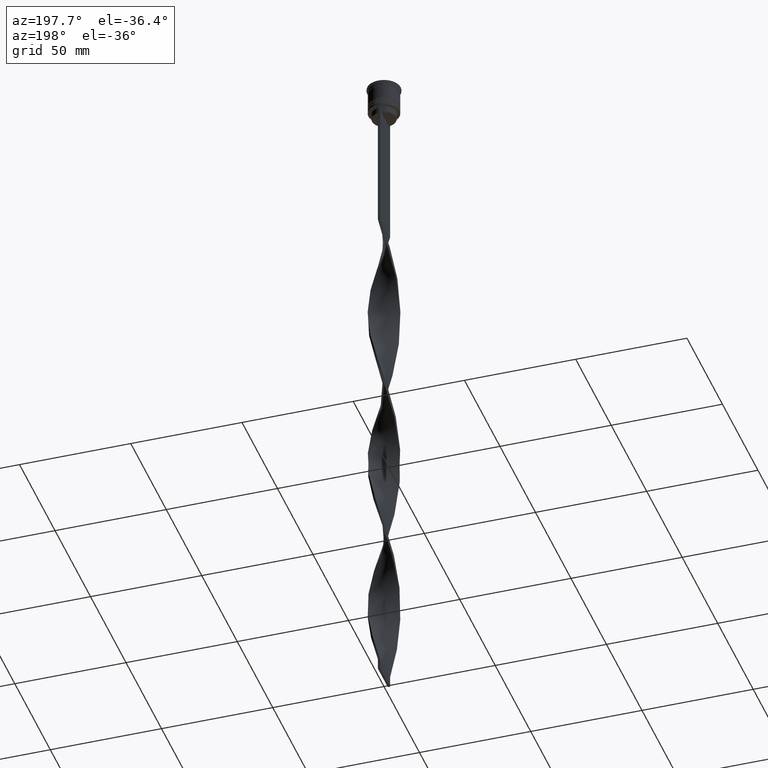
[diagram: clean part render]
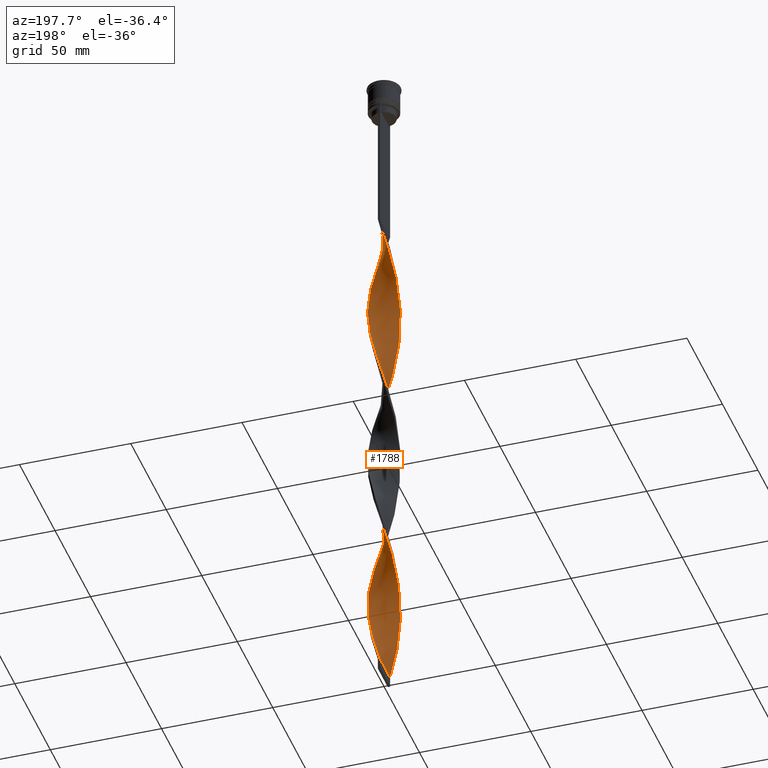
[diagram: same view with one face highlighted and labeled with its STEP entity id]
A machine part, auxiliary view. The second image highlights one B-rep face of the part: STEP entity #1788.
In plain terms, the highlighted face is a freeform B-spline surface patch.
Its self-contained STEP definition (entity closure, byte-faithful):
#1 = CARTESIAN_POINT ( 'NONE',  ( 4.519005263234784131, -5.369226334478393703, -245.1000000000000227 ) ) ;
#7 = CARTESIAN_POINT ( 'NONE',  ( -6.992035616686076871, 0.6011970849840481135, -186.5999999999999943 ) ) ;
#11 = CARTESIAN_POINT ( 'NONE',  ( -5.724879761844409387, 4.096437986383648422, -98.85000000000002274 ) ) ;
#24 = CARTESIAN_POINT ( 'NONE',  ( 2.638647218772207648, -6.502887116878598661, -81.30000000000001137 ) ) ;
#28 = CARTESIAN_POINT ( 'NONE',  ( 0.5000000000000000000, 7.000000000000002665, -229.5000000000000000 ) ) ;
#48 = CARTESIAN_POINT ( 'NONE',  ( -1.687590702477055782, 6.811904111253551442, -81.30000000000001137 ) ) ;
#50 = CARTESIAN_POINT ( 'NONE',  ( -5.369226334478397256, 4.519005263234787684, -252.9000000000000057 ) ) ;
#57 = CARTESIAN_POINT ( 'NONE',  ( 0.5000000000000000000, 7.000000000000002665, -73.50000000000001421 ) ) ;
#70 = CARTESIAN_POINT ( 'NONE',  ( -5.957011586770871503, -3.709988268859838900, -128.0999999999999943 ) ) ;
#80 = CARTESIAN_POINT ( 'NONE',  ( -6.248993995829448700, 3.241161289406940149, -176.8500000000000512 ) ) ;
#88 = CARTESIAN_POINT ( 'NONE',  ( -0.4999999999999991673, 6.999999999999997335, -307.5000000000000000 ) ) ;
#89 = CARTESIAN_POINT ( 'NONE',  ( -4.178815248312736763, 5.665029177712290753, -91.05000000000001137 ) ) ;
#91 = CARTESIAN_POINT ( 'NONE',  ( -4.596194077712561388, 5.303300858899108405, -249.0000000000000000 ) ) ;
#99 = CARTESIAN_POINT ( 'NONE',  ( -0.6011970849840483355, -6.992035616686076871, -225.5999999999999943 ) ) ;
#104 = CARTESIAN_POINT ( 'NONE',  ( 4.519005263234784131, -5.369226334478393703, -245.1000000000000227 ) ) ;
#106 = CARTESIAN_POINT ( 'NONE',  ( -0.5000000000000003331, -2.333333333333336590, -307.5000000000000000 ) ) ;
#107 = CARTESIAN_POINT ( 'NONE',  ( 4.178815248312736763, -5.665029177712291641, -169.0499999999999829 ) ) ;
#109 = CARTESIAN_POINT ( 'NONE',  ( 5.957011586770871503, 3.709988268859838012, -206.0999999999999943 ) ) ;
#121 = CARTESIAN_POINT ( 'NONE',  ( 3.150435534158375628, -6.295221077053192005, -239.2500000000000000 ) ) ;
#124 = CARTESIAN_POINT ( 'NONE',  ( 6.944720379959847811, -1.151482222195765681, -262.6499999999999773 ) ) ;
#126 = CARTESIAN_POINT ( 'NONE',  ( 5.724879761844410275, -4.096437986383645757, -176.8500000000000512 ) ) ;
#140 = CARTESIAN_POINT ( 'NONE',  ( -3.623436760271009138, 6.010050419448799808, -163.2000000000000171 ) ) ;
#146 = CARTESIAN_POINT ( 'NONE',  ( 6.295221077053192893, 3.150435534158375628, -278.2500000000000000 ) ) ;
#148 = CARTESIAN_POINT ( 'NONE',  ( -3.709988268859839788, 5.957011586770871503, -245.1000000000000227 ) ) ;
#160 = CARTESIAN_POINT ( 'NONE',  ( 0.6011970849840476694, 6.992035616686076871, -303.5999999999999659 ) ) ;
#164 = EDGE_CURVE ( 'NONE', #1983, #1298, #4040, .T. ) ;
#168 = CARTESIAN_POINT ( 'NONE',  ( -6.710553156704007094, -2.126858903386035671, -196.3500000000000227 ) ) ;
#171 = CARTESIAN_POINT ( 'NONE',  ( -3.241161289406943702, 6.248993995829452253, -243.1500000000000057 ) ) ;
#187 = CARTESIAN_POINT ( 'NONE',  ( 1.050911947772328991, -6.960649146587689629, -231.4500000000000171 ) ) ;
#189 = CARTESIAN_POINT ( 'NONE',  ( -0.05091194777232943558, 7.039350853412313036, -231.4500000000000455 ) ) ;
#206 = CARTESIAN_POINT ( 'NONE',  ( -1.687590702477056226, -6.811904111253546112, -221.7000000000000171 ) ) ;
#211 = CARTESIAN_POINT ( 'NONE',  ( 6.960649146587689629, 1.050911947772328325, -114.4500000000000313 ) ) ;
#227 = CARTESIAN_POINT ( 'NONE',  ( -1.151482222195763461, -6.944720379959848700, -223.6500000000000341 ) ) ;
#230 = CARTESIAN_POINT ( 'NONE',  ( 6.010050419448799808, 3.623436760271010026, -124.2000000000000028 ) ) ;
#240 = CARTESIAN_POINT ( 'NONE',  ( 2.732430236082644015, -6.464040919188350998, -163.2000000000000171 ) ) ;
#245 = CARTESIAN_POINT ( 'NONE',  ( 6.710553156704006206, 2.126858903386039668, -274.3499999999999659 ) ) ;
#249 = CARTESIAN_POINT ( 'NONE',  ( -7.000000000000002665, 0.5000000000000004441, -268.4999999999999432 ) ) ;
#261 = CARTESIAN_POINT ( 'NONE',  ( 6.960649146587694069, -1.050911947772333876, -188.5500000000000114 ) ) ;
#273 = CARTESIAN_POINT ( 'NONE',  ( 3.709988268859837568, 5.957011586770866174, -135.9000000000000341 ) ) ;
#278 = CARTESIAN_POINT ( 'NONE',  ( 6.464040919188344780, -2.732430236082642683, -100.7999999999999972 ) ) ;
#283 = CARTESIAN_POINT ( 'NONE',  ( -6.835601151645851026, 1.588885425579185995, -108.6000000000000085 ) ) ;
#292 = CARTESIAN_POINT ( 'NONE',  ( 0.5000000000000000000, -6.999999999999997335, -73.50000000000001421 ) ) ;
#298 = CARTESIAN_POINT ( 'NONE',  ( -1.050911947772328103, 6.960649146587689629, -153.4500000000000171 ) ) ;
#303 = CARTESIAN_POINT ( 'NONE',  ( -1.588885425579185995, -6.835601151645850138, -147.6000000000000227 ) ) ;
#309 = ORIENTED_EDGE ( 'NONE', *, *, #164, .F. ) ;
#311 = CARTESIAN_POINT ( 'NONE',  ( -4.519005263234783243, 5.369226334478393703, -167.0999999999999943 ) ) ;
#317 = CARTESIAN_POINT ( 'NONE',  ( 1.588885425579184663, -6.835601151645846585, -77.40000000000000568 ) ) ;
#320 = CARTESIAN_POINT ( 'NONE',  ( -6.811904111253552330, -1.687590702477055338, -120.2999999999999972 ) ) ;
#336 = CARTESIAN_POINT ( 'NONE',  ( -4.519005263234783243, 5.369226334478393703, -167.0999999999999943 ) ) ;
#340 = CARTESIAN_POINT ( 'NONE',  ( 2.638647218772211200, 6.502887116878603990, -221.7000000000000171 ) ) ;
#354 = CARTESIAN_POINT ( 'NONE',  ( -0.05091194777232943558, 7.039350853412313036, -75.45000000000000284 ) ) ;
#356 = CARTESIAN_POINT ( 'NONE',  ( -7.000000000000002665, 0.5000000000000004441, -268.4999999999999432 ) ) ;
#390 = CARTESIAN_POINT ( 'NONE',  ( -6.679087842547244414, 2.223699182758348325, -180.7500000000000284 ) ) ;
#398 = CARTESIAN_POINT ( 'NONE',  ( 5.013572907112383348, 4.941572540085925169, -286.0500000000000114 ) ) ;
#413 = CARTESIAN_POINT ( 'NONE',  ( -4.096437986383643093, 5.724879761844404946, -165.1500000000000341 ) ) ;
#423 = CARTESIAN_POINT ( 'NONE',  ( -5.303300858899108405, -4.596194077712559611, -288.0000000000000568 ) ) ;
#435 = CARTESIAN_POINT ( 'NONE',  ( 4.096437986383643981, -5.724879761844404946, -243.1500000000000057 ) ) ;
#439 = CARTESIAN_POINT ( 'NONE',  ( 3.241161289406941926, 6.248993995829446924, -293.8500000000000227 ) ) ;
#443 = CARTESIAN_POINT ( 'NONE',  ( 6.710553156704011535, -2.126858903386039668, -184.6500000000000057 ) ) ;
#453 = CARTESIAN_POINT ( 'NONE',  ( -6.960649146587689629, -1.050911947772330990, -192.4500000000000171 ) ) ;
#458 = CARTESIAN_POINT ( 'NONE',  ( -2.223699182758346105, 6.679087842547251519, -239.2500000000000000 ) ) ;
#473 = CARTESIAN_POINT ( 'NONE',  ( 4.596194077712557835, 5.303300858899104853, -288.0000000000000568 ) ) ;
#478 = CARTESIAN_POINT ( 'NONE',  ( -4.096437986383648422, -5.724879761844408499, -137.8499999999999943 ) ) ;
#496 = CARTESIAN_POINT ( 'NONE',  ( -6.502887116878599549, -2.638647218772206759, -198.3000000000000114 ) ) ;
#499 = CARTESIAN_POINT ( 'NONE',  ( 0.05091194777232855434, -7.039350853412313036, -153.4499999999999886 ) ) ;
#517 = CARTESIAN_POINT ( 'NONE',  ( -6.010050419448800696, -3.623436760271009138, -202.1999999999999886 ) ) ;
#519 = CARTESIAN_POINT ( 'NONE',  ( 4.096437986383647534, 5.724879761844409387, -215.8500000000000512 ) ) ;
#537 = CARTESIAN_POINT ( 'NONE',  ( 4.096437986383644869, -5.724879761844405834, -243.1500000000000057 ) ) ;
#540 = CARTESIAN_POINT ( 'NONE',  ( -6.992035616686082200, -0.6011970849840472253, -272.3999999999999773 ) ) ;
#550 = CARTESIAN_POINT ( 'NONE',  ( -0.6011970849840476694, 6.992035616686082200, -77.40000000000000568 ) ) ;
#558 = CARTESIAN_POINT ( 'NONE',  ( -4.941572540085928722, -5.013572907112387789, -289.9500000000001023 ) ) ;
#567 = CARTESIAN_POINT ( 'NONE',  ( 6.295221077053196446, -3.150435534158381845, -180.7500000000000568 ) ) ;
#576 = CARTESIAN_POINT ( 'NONE',  ( 1.687590702477054894, 6.811904111253546112, -143.6999999999999886 ) ) ;
#582 = CARTESIAN_POINT ( 'NONE',  ( -3.150435534158375184, 6.295221077053193781, -161.2500000000000284 ) ) ;
#587 = CARTESIAN_POINT ( 'NONE',  ( -0.5000000000000008882, -7.000000000000002665, -151.5000000000000284 ) ) ;
#600 = CARTESIAN_POINT ( 'NONE',  ( -6.502887116878603990, 2.638647218772209868, -260.6999999999999886 ) ) ;
#605 = CARTESIAN_POINT ( 'NONE',  ( 5.369226334478393703, 4.519005263234783243, -128.0999999999999943 ) ) ;
#609 = CARTESIAN_POINT ( 'NONE',  ( -2.126858903386042332, -6.710553156704009758, -145.6500000000000341 ) ) ;
#619 = CARTESIAN_POINT ( 'NONE',  ( 1.588885425579184663, -6.835601151645846585, -77.40000000000000568 ) ) ;
#625 = CARTESIAN_POINT ( 'NONE',  ( -6.464040919188344780, 2.732430236082643571, -178.8000000000000114 ) ) ;
#631 = CARTESIAN_POINT ( 'NONE',  ( -6.679087842547250631, -2.223699182758345660, -122.2500000000000142 ) ) ;
#640 = CARTESIAN_POINT ( 'NONE',  ( -0.05091194777233376545, -7.039350853412307707, -227.5499999999999829 ) ) ;
#644 = CARTESIAN_POINT ( 'NONE',  ( 6.835601151645846585, 1.588885425579184218, -116.4000000000000057 ) ) ;
#648 = CARTESIAN_POINT ( 'NONE',  ( -4.596194077712561388, 5.303300858899108405, -93.00000000000001421 ) ) ;
#666 = FACE_OUTER_BOUND ( 'NONE', #1258, .T. ) ;
#668 = CARTESIAN_POINT ( 'NONE',  ( -6.944720379959854029, -1.151482222195765681, -274.3499999999999659 ) ) ;
#677 =( BOUNDED_CURVE ( )  B_SPLINE_CURVE ( 2, ( #1813, #2493, #317, #3124, #24, #936, #3202, #2470, #1280, #3769, #2172, #1881, #3816, #3747, #278, #1920, #3452, #2552, #1833, #3496, #1264, #893, #644, #1899, #1198, #2533, #1241, #1501, #605, #1859, #2151, #2513, #3148, #3427, #3835, #1566, #2196, #3184, #975, #958, #2237, #298, #1526, #1221, #2831, #582, #3515, #3474, #336, #2783, #4099, #2807, #4078, #1548, #625, #3795, #3168, #2852, #7, #2218, #1586, #3010, #1747, #168, #496, #3675, #517, #2382, #1764, #2693, #3655, #806, #3068, #2061, #3970, #3342, #206, #227, #3049, #3030, #2732, #187, #1432, #1151, #841, #2420, #3693, #537, #104, #725, #1982, #1338, #1036, #1013, #3264, #744, #3953, #124, #2279, #2650, #2345, #3531, #682, #3555, #1056, #146, #1690, #1398, #1958, #398, #3306, #1647, #2002, #439, #3285, #2323, #1381, #2573, #3224, #3858, #998 ),
 .UNSPECIFIED., .F., .T. ) 
 B_SPLINE_CURVE_WITH_KNOTS ( ( 3, 2, 2, 2, 2, 2, 2, 2, 2, 2, 2, 2, 2, 2, 2, 2, 2, 2, 2, 2, 2, 2, 2, 2, 2, 2, 2, 2, 2, 2, 2, 2, 2, 2, 2, 2, 2, 2, 2, 2, 2, 2, 2, 2, 2, 2, 2, 2, 2, 2, 2, 2, 2, 2, 2, 2, 2, 2, 2, 2, 3 ),
 ( 0.000000000000000000, 0.01250000000000000243, 0.02500000000000000486, 0.03749999999999999861, 0.05000000000000000971, 0.06250000000000000000, 0.07499999999999999722, 0.08749999999999998057, 0.1000000000000000194, 0.1125000000000000028, 0.1250000000000000000, 0.1375000000000000111, 0.1499999999999999944, 0.1625000000000000056, 0.1749999999999999611, 0.1875000000000000000, 0.2000000000000000389, 0.2124999999999999944, 0.2250000000000000056, 0.2374999999999999611, 0.2500000000000000000, 0.2625000000000000111, 0.2750000000000000222, 0.2874999999999999778, 0.2999999999999999889, 0.3125000000000000000, 0.3250000000000000111, 0.3375000000000000777, 0.3499999999999999223, 0.3624999999999999889, 0.3750000000000000000, 0.3875000000000000111, 0.4000000000000000777, 0.4124999999999999223, 0.4249999999999999889, 0.4375000000000000000, 0.4500000000000000111, 0.4625000000000000777, 0.4749999999999999223, 0.4874999999999999889, 0.5000000000000000000, 0.5124999999999999556, 0.5250000000000000222, 0.5374999999999999778, 0.5500000000000000444, 0.5625000000000000000, 0.5749999999999999556, 0.5875000000000000222, 0.5999999999999999778, 0.6125000000000000444, 0.6250000000000000000, 0.6374999999999999556, 0.6500000000000000222, 0.6624999999999999778, 0.6750000000000001554, 0.6875000000000000000, 0.6999999999999998446, 0.7125000000000000222, 0.7249999999999999778, 0.7375000000000001554, 0.7500000000000000000 ),
 .UNSPECIFIED. ) 
 CURVE ( )  GEOMETRIC_REPRESENTATION_ITEM ( )  RATIONAL_B_SPLINE_CURVE ( ( 1.000000000000000000, 0.9969173337331279638, 1.000000000000000000, 0.9969173337331279638, 1.000000000000000000, 0.9969173337331279638, 1.000000000000000000, 0.9969173337331279638, 1.000000000000000000, 0.9969173337331279638, 1.000000000000000000, 0.9969173337331279638, 1.000000000000000000, 0.9969173337331279638, 1.000000000000000000, 0.9969173337331279638, 1.000000000000000000, 0.9969173337331279638, 1.000000000000000000, 0.9969173337331279638, 1.000000000000000000, 0.9969173337331279638, 1.000000000000000000, 0.9969173337331279638, 1.000000000000000000, 0.9969173337331279638, 1.000000000000000000, 0.9969173337331279638, 1.000000000000000000, 0.9969173337331279638, 1.000000000000000000, 0.9969173337331279638, 1.000000000000000000, 0.9969173337331279638, 1.000000000000000000, 0.9969173337331279638, 1.000000000000000000, 0.9969173337331279638, 1.000000000000000000, 0.9969173337331279638, 1.000000000000000000, 0.9969173337331279638, 1.000000000000000000, 0.9969173337331279638, 1.000000000000000000, 0.9969173337331279638, 1.000000000000000000, 0.9969173337331279638, 1.000000000000000000, 0.9969173337331279638, 1.000000000000000000, 0.9969173337331279638, 1.000000000000000000, 0.9969173337331279638, 1.000000000000000000, 0.9969173337331279638, 1.000000000000000000, 0.9969173337331279638, 1.000000000000000000, 0.9969173337331279638, 1.000000000000000000, 0.9969173337331279638, 1.000000000000000000, 0.9969173337331279638, 1.000000000000000000, 0.9969173337331279638, 1.000000000000000000, 0.9969173337331279638, 1.000000000000000000, 0.9969173337331279638, 1.000000000000000000, 0.9969173337331279638, 1.000000000000000000, 0.9969173337331279638, 1.000000000000000000, 0.9969173337331279638, 1.000000000000000000, 0.9969173337331279638, 1.000000000000000000, 0.9969173337331279638, 1.000000000000000000, 0.9969173337331279638, 1.000000000000000000, 0.9969173337331279638, 1.000000000000000000, 0.9969173337331279638, 1.000000000000000000, 0.9969173337331279638, 1.000000000000000000, 0.9969173337331279638, 1.000000000000000000, 0.9969173337331279638, 1.000000000000000000, 0.9969173337331279638, 1.000000000000000000, 0.9969173337331279638, 1.000000000000000000, 0.9969173337331279638, 1.000000000000000000, 0.9969173337331279638, 1.000000000000000000, 0.9969173337331279638, 1.000000000000000000, 0.9969173337331279638, 1.000000000000000000, 0.9969173337331279638, 1.000000000000000000, 0.9969173337331279638, 1.000000000000000000, 0.9969173337331279638, 1.000000000000000000, 0.9969173337331279638, 1.000000000000000000, 0.9969173337331279638, 1.000000000000000000, 0.9969173337331279638, 1.000000000000000000, 0.9969173337331279638, 1.000000000000000000, 0.9969173337331279638, 1.000000000000000000 ) ) 
 REPRESENTATION_ITEM ( '' )  );
#682 = CARTESIAN_POINT ( 'NONE',  ( 6.835601151645846585, 1.588885425579184218, -272.3999999999999773 ) ) ;
#687 = CARTESIAN_POINT ( 'NONE',  ( -7.000000000000002665, 0.5000000000000004441, -112.5000000000000142 ) ) ;
#689 = CARTESIAN_POINT ( 'NONE',  ( -1.151482222195766125, 6.944720379959853140, -235.3500000000000227 ) ) ;
#707 = CARTESIAN_POINT ( 'NONE',  ( -5.665029177712290753, -4.178815248312736763, -130.0499999999999829 ) ) ;
#713 = ORIENTED_EDGE ( 'NONE', *, *, #2849, .F. ) ;
#718 = CARTESIAN_POINT ( 'NONE',  ( -6.710553156704007094, -2.126858903386035671, -196.3500000000000227 ) ) ;
#725 = CARTESIAN_POINT ( 'NONE',  ( 4.941572540085925169, -5.013572907112383348, -247.0500000000000114 ) ) ;
#729 = CARTESIAN_POINT ( 'NONE',  ( -6.248993995829452253, -3.241161289406943702, -126.1500000000000199 ) ) ;
#731 = CARTESIAN_POINT ( 'NONE',  ( -5.724879761844409387, 4.096437986383648422, -254.8500000000000227 ) ) ;
#739 = CARTESIAN_POINT ( 'NONE',  ( -4.178815248312737651, -5.665029177712284536, -211.9499999999999886 ) ) ;
#744 = CARTESIAN_POINT ( 'NONE',  ( 6.679087842547245302, -2.223699182758344772, -258.7500000000001137 ) ) ;
#747 = CARTESIAN_POINT ( 'NONE',  ( 6.679087842547250631, 2.223699182758347881, -200.2500000000000000 ) ) ;
#750 = CARTESIAN_POINT ( 'NONE',  ( -6.710553156704009758, 2.126858903386041888, -262.6499999999999773 ) ) ;
#761 = CARTESIAN_POINT ( 'NONE',  ( -3.150435534158374740, 6.295221077053192893, -161.2500000000000568 ) ) ;
#771 = CARTESIAN_POINT ( 'NONE',  ( -0.6011970849840476694, 6.992035616686082200, -233.4000000000000057 ) ) ;
#780 = CARTESIAN_POINT ( 'NONE',  ( 6.960649146587689629, 1.050911947772328325, -270.4500000000000455 ) ) ;
#787 = CARTESIAN_POINT ( 'NONE',  ( 3.623436760271014023, 6.010050419448804249, -217.7999999999999829 ) ) ;
#803 = CARTESIAN_POINT ( 'NONE',  ( 6.502887116878599549, 2.638647218772207204, -276.3000000000000114 ) ) ;
#806 = CARTESIAN_POINT ( 'NONE',  ( -4.178815248312737651, -5.665029177712284536, -211.9499999999999886 ) ) ;
#808 = CARTESIAN_POINT ( 'NONE',  ( -5.369226334478397256, 4.519005263234787684, -252.9000000000000057 ) ) ;
#826 = CARTESIAN_POINT ( 'NONE',  ( 6.295221077053195557, -3.150435534158381401, -180.7500000000000284 ) ) ;
#836 = CARTESIAN_POINT ( 'NONE',  ( 5.369226334478393703, 4.519005263234783243, -284.1000000000000227 ) ) ;
#841 = CARTESIAN_POINT ( 'NONE',  ( 2.638647218772207648, -6.502887116878598661, -237.3000000000000114 ) ) ;
#843 = CARTESIAN_POINT ( 'NONE',  ( 6.295221077053192005, 3.150435534158375184, -122.2500000000000142 ) ) ;
#852 = CARTESIAN_POINT ( 'NONE',  ( 0.5000000000000000000, 7.000000000000002665, -73.50000000000001421 ) ) ;
#863 = CARTESIAN_POINT ( 'NONE',  ( 5.957011586770867062, -3.709988268859836236, -96.90000000000001990 ) ) ;
#873 = CARTESIAN_POINT ( 'NONE',  ( 1.151482222195765237, -6.944720379959854029, -157.3499999999999943 ) ) ;
#886 = CARTESIAN_POINT ( 'NONE',  ( -6.960649146587694958, 1.050911947772329658, -266.5500000000000114 ) ) ;
#893 = CARTESIAN_POINT ( 'NONE',  ( 6.960649146587689629, 1.050911947772328325, -114.4500000000000171 ) ) ;
#899 = CARTESIAN_POINT ( 'NONE',  ( 6.811904111253552330, 1.687590702477054450, -198.3000000000000114 ) ) ;
#907 = CARTESIAN_POINT ( 'NONE',  ( 6.679087842547246190, -2.223699182758344772, -102.7500000000000284 ) ) ;
#916 = CARTESIAN_POINT ( 'NONE',  ( -6.464040919188350998, -2.732430236082644459, -124.2000000000000028 ) ) ;
#930 = CARTESIAN_POINT ( 'NONE',  ( -2.638647218772210312, -6.502887116878603990, -299.6999999999999886 ) ) ;
#936 = CARTESIAN_POINT ( 'NONE',  ( 3.150435534158376072, -6.295221077053192893, -83.25000000000000000 ) ) ;
#941 = CARTESIAN_POINT ( 'NONE',  ( 6.502887116878603990, -2.638647218772210756, -182.6999999999999886 ) ) ;
#952 = CARTESIAN_POINT ( 'NONE',  ( -1.588885425579183774, 6.835601151645846585, -155.4000000000000057 ) ) ;
#958 = CARTESIAN_POINT ( 'NONE',  ( 0.05091194777232986579, 7.039350853412307707, -149.5500000000000398 ) ) ;
#960 = CARTESIAN_POINT ( 'NONE',  ( -2.223699182758346105, 6.679087842547251519, -83.25000000000000000 ) ) ;
#963 = CARTESIAN_POINT ( 'NONE',  ( -6.960649146587694069, 1.050911947772329658, -110.5500000000000114 ) ) ;
#975 = CARTESIAN_POINT ( 'NONE',  ( 0.6011970849840476694, 6.992035616686076871, -147.6000000000000227 ) ) ;
#980 = CARTESIAN_POINT ( 'NONE',  ( -3.623436760271013135, -6.010050419448804249, -295.8000000000000114 ) ) ;
#998 = CARTESIAN_POINT ( 'NONE',  ( -0.4999999999999991673, 6.999999999999997335, -307.5000000000000000 ) ) ;
#1001 = CARTESIAN_POINT ( 'NONE',  ( -6.464040919188350998, -2.732430236082644459, -280.1999999999999886 ) ) ;
#1013 = CARTESIAN_POINT ( 'NONE',  ( 6.248993995829446924, -3.241161289406941926, -254.8500000000000227 ) ) ;
#1020 = CARTESIAN_POINT ( 'NONE',  ( -0.5000000000000008882, -7.000000000000002665, -307.5000000000000000 ) ) ;
#1032 = CARTESIAN_POINT ( 'NONE',  ( 5.665029177712287201, -4.178815248312734987, -250.9499999999999602 ) ) ;
#1036 = CARTESIAN_POINT ( 'NONE',  ( 5.957011586770867062, -3.709988268859836236, -252.9000000000000057 ) ) ;
#1041 = CARTESIAN_POINT ( 'NONE',  ( 5.303300858899109294, 4.596194077712558723, -210.0000000000000000 ) ) ;
#1050 = CARTESIAN_POINT ( 'NONE',  ( -5.665029177712285424, 4.178815248312737651, -172.9499999999999886 ) ) ;
#1056 = CARTESIAN_POINT ( 'NONE',  ( 6.502887116878599549, 2.638647218772207204, -276.3000000000000114 ) ) ;
#1060 = CARTESIAN_POINT ( 'NONE',  ( -2.126858903386042332, -6.710553156704010647, -145.6500000000000341 ) ) ;
#1063 = CARTESIAN_POINT ( 'NONE',  ( -7.039350853412313036, -0.05091194777232888741, -270.4500000000000455 ) ) ;
#1077 = CARTESIAN_POINT ( 'NONE',  ( 6.811904111253546112, -1.687590702477054450, -260.6999999999999886 ) ) ;
#1084 = CARTESIAN_POINT ( 'NONE',  ( 2.223699182758345216, -6.679087842547252407, -161.2500000000000568 ) ) ;
#1095 = CARTESIAN_POINT ( 'NONE',  ( 6.999999999999997335, 0.4999999999999995559, -268.4999999999999432 ) ) ;
#1103 = CARTESIAN_POINT ( 'NONE',  ( -4.519005263234788572, -5.369226334478396367, -135.9000000000000341 ) ) ;
#1120 = CARTESIAN_POINT ( 'NONE',  ( 1.151482222195765237, -6.944720379959854917, -157.3499999999999659 ) ) ;
#1125 = VECTOR ( 'NONE', #3061, 1000.000000000000000 ) ;
#1131 = CARTESIAN_POINT ( 'NONE',  ( 3.709988268859837568, 5.957011586770866174, -291.8999999999999773 ) ) ;
#1136 = CARTESIAN_POINT ( 'NONE',  ( 0.6011970849840465592, -6.992035616686082200, -155.4000000000000057 ) ) ;
#1151 = CARTESIAN_POINT ( 'NONE',  ( 2.126858903386040112, -6.710553156704005318, -235.3500000000000227 ) ) ;
#1153 = CARTESIAN_POINT ( 'NONE',  ( 2.126858903386040112, -6.710553156704005318, -79.35000000000002274 ) ) ;
#1170 = CARTESIAN_POINT ( 'NONE',  ( -6.464040919188350998, -2.732430236082644459, -280.1999999999999886 ) ) ;
#1182 = CARTESIAN_POINT ( 'NONE',  ( 3.709988268859838900, -5.957011586770871503, -167.0999999999999943 ) ) ;
#1193 = CARTESIAN_POINT ( 'NONE',  ( 2.223699182758344772, 6.679087842547246190, -141.7499999999999716 ) ) ;
#1198 = CARTESIAN_POINT ( 'NONE',  ( 6.502887116878599549, 2.638647218772207204, -120.2999999999999972 ) ) ;
#1202 = CARTESIAN_POINT ( 'NONE',  ( -1.687590702477055782, 6.811904111253551442, -81.30000000000001137 ) ) ;
#1213 = CARTESIAN_POINT ( 'NONE',  ( -0.5000000000000008882, -7.000000000000002665, -307.5000000000000000 ) ) ;
#1221 = CARTESIAN_POINT ( 'NONE',  ( -2.126858903386039223, 6.710553156704006206, -157.3499999999999943 ) ) ;
#1225 = CARTESIAN_POINT ( 'NONE',  ( 5.369226334478396367, -4.519005263234788572, -174.9000000000000057 ) ) ;
#1233 = CARTESIAN_POINT ( 'NONE',  ( -6.710553156704010647, 2.126858903386041888, -262.6499999999999773 ) ) ;
#1241 = CARTESIAN_POINT ( 'NONE',  ( 6.010050419448799808, 3.623436760271010026, -124.2000000000000028 ) ) ;
#1246 = CARTESIAN_POINT ( 'NONE',  ( 4.596194077712559611, -5.303300858899109294, -170.9999999999999716 ) ) ;
#1258 = EDGE_LOOP ( 'NONE', ( #713, #2300, #309, #3123 ) ) ;
#1259 = CARTESIAN_POINT ( 'NONE',  ( -6.999999999999997335, -0.4999999999999987232, -190.5000000000000000 ) ) ;
#1264 = CARTESIAN_POINT ( 'NONE',  ( 6.999999999999997335, 0.4999999999999995559, -112.5000000000000142 ) ) ;
#1267 = CARTESIAN_POINT ( 'NONE',  ( -5.665029177712290753, -4.178815248312736763, -130.0500000000000114 ) ) ;
#1280 = CARTESIAN_POINT ( 'NONE',  ( 4.519005263234784131, -5.369226334478393703, -89.10000000000000853 ) ) ;
#1281 = CARTESIAN_POINT ( 'NONE',  ( -0.5000000000000008882, -7.000000000000002665, -307.5000000000000000 ) ) ;
#1285 = CARTESIAN_POINT ( 'NONE',  ( -1.687590702477055782, 6.811904111253551442, -237.3000000000000114 ) ) ;
#1298 = VERTEX_POINT ( 'NONE', #3550 ) ;
#1302 = CARTESIAN_POINT ( 'NONE',  ( -6.710553156704010647, 2.126858903386041888, -106.6500000000000199 ) ) ;
#1304 = CARTESIAN_POINT ( 'NONE',  ( -6.992035616686082200, -0.6011970849840472253, -272.3999999999999773 ) ) ;
#1322 = CARTESIAN_POINT ( 'NONE',  ( -6.992035616686082200, -0.6011970849840472253, -116.4000000000000057 ) ) ;
#1324 = CARTESIAN_POINT ( 'NONE',  ( 4.941572540085930498, 5.013572907112383348, -211.9499999999999886 ) ) ;
#1333 = CARTESIAN_POINT ( 'NONE',  ( 1.588885425579184663, -6.835601151645846585, -233.4000000000000057 ) ) ;
#1338 = CARTESIAN_POINT ( 'NONE',  ( 5.665029177712287201, -4.178815248312734987, -250.9500000000000171 ) ) ;
#1344 = CARTESIAN_POINT ( 'NONE',  ( -6.811904111253552330, -1.687590702477055338, -120.2999999999999972 ) ) ;
#1355 = CARTESIAN_POINT ( 'NONE',  ( 1.050911947772328991, -6.960649146587689629, -231.4500000000000455 ) ) ;
#1361 = CARTESIAN_POINT ( 'NONE',  ( -0.4999999999999996669, 2.333333333333331261, -307.5000000000000000 ) ) ;
#1362 = CARTESIAN_POINT ( 'NONE',  ( 4.596194077712559611, -5.303300858899109294, -170.9999999999999716 ) ) ;
#1364 = CARTESIAN_POINT ( 'NONE',  ( -4.178815248312736763, 5.665029177712290753, -247.0500000000000114 ) ) ;
#1375 = CARTESIAN_POINT ( 'NONE',  ( -6.811904111253546112, 1.687590702477055338, -182.6999999999999886 ) ) ;
#1381 = CARTESIAN_POINT ( 'NONE',  ( 1.687590702477054894, 6.811904111253546112, -299.6999999999999886 ) ) ;
#1384 = CARTESIAN_POINT ( 'NONE',  ( 6.992035616686082200, 0.6011970849840463371, -194.4000000000000057 ) ) ;
#1395 = CARTESIAN_POINT ( 'NONE',  ( 6.992035616686076871, -0.6011970849840472253, -264.6000000000000227 ) ) ;
#1398 = CARTESIAN_POINT ( 'NONE',  ( 5.724879761844405834, 4.096437986383644869, -282.1500000000000909 ) ) ;
#1400 = CARTESIAN_POINT ( 'NONE',  ( -4.178815248312736763, 5.665029177712290753, -247.0500000000000114 ) ) ;
#1411 = CARTESIAN_POINT ( 'NONE',  ( -0.4999999999999991673, 6.999999999999997335, -307.5000000000000000 ) ) ;
#1417 = CARTESIAN_POINT ( 'NONE',  ( 6.010050419448804249, -3.623436760271013579, -178.8000000000000114 ) ) ;
#1432 = CARTESIAN_POINT ( 'NONE',  ( 1.588885425579184663, -6.835601151645846585, -233.4000000000000057 ) ) ;
#1436 = CARTESIAN_POINT ( 'NONE',  ( 6.811904111253552330, 1.687590702477054450, -198.3000000000000114 ) ) ;
#1453 = CARTESIAN_POINT ( 'NONE',  ( -1.588885425579185995, -6.835601151645850138, -303.5999999999999659 ) ) ;
#1475 = CARTESIAN_POINT ( 'NONE',  ( 5.369226334478393703, 4.519005263234783243, -128.0999999999999943 ) ) ;
#1485 = CARTESIAN_POINT ( 'NONE',  ( -6.992035616686082200, -0.6011970849840472253, -116.4000000000000057 ) ) ;
#1490 = CARTESIAN_POINT ( 'NONE',  ( 1.687590702477054894, 6.811904111253546112, -299.6999999999999886 ) ) ;
#1496 = CARTESIAN_POINT ( 'NONE',  ( -4.096437986383648422, -5.724879761844408499, -293.8500000000000227 ) ) ;
#1501 = CARTESIAN_POINT ( 'NONE',  ( 5.724879761844405834, 4.096437986383644869, -126.1500000000000057 ) ) ;
#1508 = CARTESIAN_POINT ( 'NONE',  ( -2.732430236082644459, 6.464040919188350998, -85.20000000000001705 ) ) ;
#1520 = CARTESIAN_POINT ( 'NONE',  ( -6.944720379959854917, -1.151482222195765681, -274.3499999999999659 ) ) ;
#1526 = CARTESIAN_POINT ( 'NONE',  ( -1.588885425579183774, 6.835601151645846585, -155.4000000000000057 ) ) ;
#1531 = CARTESIAN_POINT ( 'NONE',  ( 5.013572907112384236, -4.941572540085930498, -172.9499999999999886 ) ) ;
#1543 = CARTESIAN_POINT ( 'NONE',  ( -5.665029177712290753, -4.178815248312736763, -286.0500000000000114 ) ) ;
#1548 = CARTESIAN_POINT ( 'NONE',  ( -6.248993995829448700, 3.241161289406939705, -176.8500000000000227 ) ) ;
#1553 = CARTESIAN_POINT ( 'NONE',  ( 0.6011970849840465592, -6.992035616686082200, -155.4000000000000057 ) ) ;
#1561 = CARTESIAN_POINT ( 'NONE',  ( -5.013572907112382460, -4.941572540085926057, -208.0500000000000398 ) ) ;
#1566 = CARTESIAN_POINT ( 'NONE',  ( 2.223699182758344772, 6.679087842547245302, -141.7500000000000000 ) ) ;
#1572 = CARTESIAN_POINT ( 'NONE',  ( -5.369226334478397256, 4.519005263234787684, -96.90000000000001990 ) ) ;
#1586 = CARTESIAN_POINT ( 'NONE',  ( -6.999999999999997335, -0.4999999999999987232, -190.5000000000000000 ) ) ;
#1590 = CARTESIAN_POINT ( 'NONE',  ( -6.502887116878603990, 2.638647218772209868, -260.6999999999999886 ) ) ;
#1607 = CARTESIAN_POINT ( 'NONE',  ( -5.724879761844408499, 4.096437986383648422, -98.85000000000002274 ) ) ;
#1610 = CARTESIAN_POINT ( 'NONE',  ( -5.957011586770871503, -3.709988268859838900, -284.1000000000000227 ) ) ;
#1627 = CARTESIAN_POINT ( 'NONE',  ( -6.944720379959854917, -1.151482222195765681, -118.3500000000000085 ) ) ;
#1639 = CARTESIAN_POINT ( 'NONE',  ( -0.4999999999999991673, 6.999999999999997335, -151.5000000000000284 ) ) ;
#1647 = CARTESIAN_POINT ( 'NONE',  ( 4.178815248312734987, 5.665029177712287201, -289.9500000000001023 ) ) ;
#1652 = CARTESIAN_POINT ( 'NONE',  ( -6.835601151645851026, 1.588885425579185995, -264.6000000000000227 ) ) ;
#1660 = CARTESIAN_POINT ( 'NONE',  ( -6.010050419448800696, -3.623436760271009138, -202.1999999999999886 ) ) ;
#1672 = CARTESIAN_POINT ( 'NONE',  ( -5.665029177712290753, -4.178815248312736763, -286.0500000000000114 ) ) ;
#1684 = CARTESIAN_POINT ( 'NONE',  ( -6.295221077053191117, -3.150435534158376960, -200.2500000000000000 ) ) ;
#1690 = CARTESIAN_POINT ( 'NONE',  ( 6.010050419448799808, 3.623436760271010026, -280.1999999999999886 ) ) ;
#1692 = CARTESIAN_POINT ( 'NONE',  ( 5.665029177712290753, 4.178815248312739428, -208.0500000000000398 ) ) ;
#1706 = CARTESIAN_POINT ( 'NONE',  ( -6.835601151645846585, -1.588885425579183330, -194.4000000000000057 ) ) ;
#1713 = CARTESIAN_POINT ( 'NONE',  ( -2.638647218772210312, -6.502887116878603990, -143.6999999999999886 ) ) ;
#1720 = CARTESIAN_POINT ( 'NONE',  ( 0.5000000000000000000, -6.999999999999997335, -73.50000000000001421 ) ) ;
#1721 = EDGE_CURVE ( 'NONE', #3490, #1298, #677, .T. ) ;
#1722 = CARTESIAN_POINT ( 'NONE',  ( 5.724879761844404946, 4.096437986383643981, -282.1500000000000909 ) ) ;
#1728 = CARTESIAN_POINT ( 'NONE',  ( -1.687590702477055782, 6.811904111253551442, -237.3000000000000114 ) ) ;
#1747 = CARTESIAN_POINT ( 'NONE',  ( -6.835601151645846585, -1.588885425579183330, -194.4000000000000057 ) ) ;
#1749 = CARTESIAN_POINT ( 'NONE',  ( 2.732430236082644015, -6.464040919188350998, -163.2000000000000171 ) ) ;
#1764 = CARTESIAN_POINT ( 'NONE',  ( -5.369226334478394591, -4.519005263234783243, -206.0999999999999943 ) ) ;
#1768 = CARTESIAN_POINT ( 'NONE',  ( -4.941572540085928722, -5.013572907112387789, -133.9500000000000455 ) ) ;
#1788 = ADVANCED_FACE ( 'NONE', ( #666 ), #2376, .T. ) ;
#1789 = CARTESIAN_POINT ( 'NONE',  ( 5.303300858899104853, -4.596194077712557835, -93.00000000000001421 ) ) ;
#1808 = CARTESIAN_POINT ( 'NONE',  ( 6.502887116878599549, 2.638647218772207204, -120.2999999999999972 ) ) ;
#1813 = CARTESIAN_POINT ( 'NONE',  ( 0.5000000000000000000, -6.999999999999997335, -73.50000000000001421 ) ) ;
#1818 = CARTESIAN_POINT ( 'NONE',  ( 6.710553156704010647, -2.126858903386039668, -184.6500000000000057 ) ) ;
#1827 = CARTESIAN_POINT ( 'NONE',  ( -6.295221077053197334, 3.150435534158377848, -258.7500000000001137 ) ) ;
#1833 = CARTESIAN_POINT ( 'NONE',  ( 6.992035616686076871, -0.6011970849840472253, -108.6000000000000085 ) ) ;
#1840 = CARTESIAN_POINT ( 'NONE',  ( 4.178815248312736763, -5.665029177712291641, -169.0500000000000114 ) ) ;
#1853 = CARTESIAN_POINT ( 'NONE',  ( -2.126858903386042332, -6.710553156704010647, -301.6500000000000341 ) ) ;
#1859 = CARTESIAN_POINT ( 'NONE',  ( 5.013572907112383348, 4.941572540085925169, -130.0500000000000114 ) ) ;
#1864 = CARTESIAN_POINT ( 'NONE',  ( -3.709988268859839788, 5.957011586770871503, -89.10000000000000853 ) ) ;
#1876 = CARTESIAN_POINT ( 'NONE',  ( -4.596194077712558723, -5.303300858899103964, -210.0000000000000000 ) ) ;
#1881 = CARTESIAN_POINT ( 'NONE',  ( 5.665029177712287201, -4.178815248312734987, -94.95000000000001705 ) ) ;
#1886 = CARTESIAN_POINT ( 'NONE',  ( -4.941572540085927834, -5.013572907112386901, -133.9500000000000455 ) ) ;
#1899 = CARTESIAN_POINT ( 'NONE',  ( 6.710553156704006206, 2.126858903386039668, -118.3500000000000085 ) ) ;
#1903 = CARTESIAN_POINT ( 'NONE',  ( 3.241161289406943258, -6.248993995829452253, -165.1500000000000341 ) ) ;
#1920 = CARTESIAN_POINT ( 'NONE',  ( 6.679087842547245302, -2.223699182758344772, -102.7500000000000284 ) ) ;
#1922 = CARTESIAN_POINT ( 'NONE',  ( -5.013572907112387789, 4.941572540085928722, -94.95000000000001705 ) ) ;
#1925 = CARTESIAN_POINT ( 'NONE',  ( -6.960649146587694069, 1.050911947772329658, -266.5500000000000114 ) ) ;
#1942 = CARTESIAN_POINT ( 'NONE',  ( -6.295221077053197334, 3.150435534158377848, -102.7500000000000284 ) ) ;
#1945 = CARTESIAN_POINT ( 'NONE',  ( 1.050911947772334099, 6.960649146587694069, -227.5500000000000114 ) ) ;
#1955 = CARTESIAN_POINT ( 'NONE',  ( 6.248993995829446924, -3.241161289406941926, -254.8500000000000227 ) ) ;
#1958 = CARTESIAN_POINT ( 'NONE',  ( 5.369226334478393703, 4.519005263234783243, -284.1000000000000227 ) ) ;
#1963 = CARTESIAN_POINT ( 'NONE',  ( -2.732430236082644459, 6.464040919188350998, -241.1999999999999886 ) ) ;
#1976 = CARTESIAN_POINT ( 'NONE',  ( -5.724879761844406723, -4.096437986383641316, -204.1500000000000341 ) ) ;
#1982 = CARTESIAN_POINT ( 'NONE',  ( 5.303300858899104853, -4.596194077712557835, -249.0000000000000000 ) ) ;
#1983 = VERTEX_POINT ( 'NONE', #3778 ) ;
#1987 = CARTESIAN_POINT ( 'NONE',  ( 3.623436760271014023, 6.010050419448804249, -217.7999999999999829 ) ) ;
#1995 = CARTESIAN_POINT ( 'NONE',  ( 0.5000000000000000000, -6.999999999999997335, -229.5000000000000000 ) ) ;
#2002 = CARTESIAN_POINT ( 'NONE',  ( 3.709988268859837568, 5.957011586770866174, -291.8999999999999773 ) ) ;
#2006 = CARTESIAN_POINT ( 'NONE',  ( 1.588885425579186883, 6.835601151645850138, -225.5999999999999943 ) ) ;
#2018 = CARTESIAN_POINT ( 'NONE',  ( -6.992035616686076871, 0.6011970849840481135, -186.5999999999999943 ) ) ;
#2028 = CARTESIAN_POINT ( 'NONE',  ( 7.000000000000002665, -0.5000000000000013323, -190.5000000000000000 ) ) ;
#2044 = CARTESIAN_POINT ( 'NONE',  ( -1.151482222195766125, 6.944720379959854029, -235.3500000000000227 ) ) ;
#2061 = CARTESIAN_POINT ( 'NONE',  ( -3.241161289406940149, -6.248993995829447812, -215.8500000000000512 ) ) ;
#2064 = CARTESIAN_POINT ( 'NONE',  ( -5.724879761844408499, 4.096437986383648422, -254.8500000000000227 ) ) ;
#2082 = CARTESIAN_POINT ( 'NONE',  ( 6.464040919188351886, 2.732430236082644015, -202.1999999999999886 ) ) ;
#2102 = CARTESIAN_POINT ( 'NONE',  ( -3.150435534158378292, -6.295221077053197334, -297.7499999999999432 ) ) ;
#2111 = CARTESIAN_POINT ( 'NONE',  ( -0.05091194777232942864, 7.039350853412313036, -75.45000000000000284 ) ) ;
#2113 = CARTESIAN_POINT ( 'NONE',  ( 0.05091194777232986579, 7.039350853412307707, -305.5500000000000114 ) ) ;
#2118 = CARTESIAN_POINT ( 'NONE',  ( -1.050911947772330324, -6.960649146587694958, -305.5500000000000114 ) ) ;
#2129 = CARTESIAN_POINT ( 'NONE',  ( 0.5000000000000000000, -6.999999999999997335, -73.50000000000001421 ) ) ;
#2130 = CARTESIAN_POINT ( 'NONE',  ( -2.223699182758346105, 6.679087842547250631, -83.25000000000000000 ) ) ;
#2143 = CARTESIAN_POINT ( 'NONE',  ( -7.039350853412313036, -0.05091194777232888741, -270.4500000000000455 ) ) ;
#2151 = CARTESIAN_POINT ( 'NONE',  ( 4.596194077712557835, 5.303300858899104853, -132.0000000000000000 ) ) ;
#2156 = CARTESIAN_POINT ( 'NONE',  ( 6.679087842547249743, 2.223699182758347881, -200.2500000000000000 ) ) ;
#2164 = CARTESIAN_POINT ( 'NONE',  ( -3.623436760271013135, -6.010050419448804249, -295.8000000000000114 ) ) ;
#2172 = CARTESIAN_POINT ( 'NONE',  ( 5.303300858899104853, -4.596194077712557835, -93.00000000000001421 ) ) ;
#2177 = CARTESIAN_POINT ( 'NONE',  ( -6.295221077053198222, 3.150435534158378292, -102.7500000000000284 ) ) ;
#2189 = CARTESIAN_POINT ( 'NONE',  ( 5.665029177712287201, -4.178815248312734987, -94.95000000000001705 ) ) ;
#2196 = CARTESIAN_POINT ( 'NONE',  ( 1.687590702477054894, 6.811904111253546112, -143.6999999999999886 ) ) ;
#2201 = CARTESIAN_POINT ( 'NONE',  ( 7.000000000000002665, -0.5000000000000013323, -190.5000000000000000 ) ) ;
#2213 = CARTESIAN_POINT ( 'NONE',  ( 0.05091194777232986579, 7.039350853412307707, -149.5500000000000682 ) ) ;
#2218 = CARTESIAN_POINT ( 'NONE',  ( -7.039350853412307707, 0.05091194777233333524, -188.5500000000000114 ) ) ;
#2221 = CARTESIAN_POINT ( 'NONE',  ( -1.050911947772330324, -6.960649146587694069, -149.5500000000000398 ) ) ;
#2237 = CARTESIAN_POINT ( 'NONE',  ( -0.4999999999999991673, 6.999999999999997335, -151.5000000000000284 ) ) ;
#2241 = CARTESIAN_POINT ( 'NONE',  ( 1.588885425579186883, 6.835601151645850138, -225.5999999999999943 ) ) ;
#2264 = CARTESIAN_POINT ( 'NONE',  ( -6.835601151645851026, 1.588885425579185995, -108.6000000000000085 ) ) ;
#2266 = CARTESIAN_POINT ( 'NONE',  ( -1.588885425579185995, -6.835601151645850138, -303.5999999999999659 ) ) ;
#2279 = CARTESIAN_POINT ( 'NONE',  ( 6.992035616686076871, -0.6011970849840472253, -264.6000000000000227 ) ) ;
#2283 = CARTESIAN_POINT ( 'NONE',  ( -0.6011970849840476694, 6.992035616686082200, -77.40000000000000568 ) ) ;
#2287 = CARTESIAN_POINT ( 'NONE',  ( -2.638647218772210312, -6.502887116878603990, -299.6999999999999886 ) ) ;
#2296 = CARTESIAN_POINT ( 'NONE',  ( -2.732430236082644015, -6.464040919188344780, -217.7999999999999829 ) ) ;
#2300 = ORIENTED_EDGE ( 'NONE', *, *, #1721, .T. ) ;
#2302 = CARTESIAN_POINT ( 'NONE',  ( -4.596194077712561388, 5.303300858899108405, -93.00000000000001421 ) ) ;
#2304 = CARTESIAN_POINT ( 'NONE',  ( -0.05091194777232942864, 7.039350853412313036, -231.4500000000000171 ) ) ;
#2317 = CARTESIAN_POINT ( 'NONE',  ( -6.502887116878599549, -2.638647218772206759, -198.3000000000000114 ) ) ;
#2323 = CARTESIAN_POINT ( 'NONE',  ( 2.223699182758344772, 6.679087842547245302, -297.7499999999999432 ) ) ;
#2327 = CARTESIAN_POINT ( 'NONE',  ( 2.638647218772211200, 6.502887116878603990, -221.7000000000000171 ) ) ;
#2329 = CARTESIAN_POINT ( 'NONE',  ( 2.126858903386039668, 6.710553156704010647, -223.6500000000000341 ) ) ;
#2338 = CARTESIAN_POINT ( 'NONE',  ( -3.709988268859838456, -5.957011586770866174, -213.9000000000000057 ) ) ;
#2345 = CARTESIAN_POINT ( 'NONE',  ( 6.999999999999997335, 0.4999999999999995559, -268.4999999999999432 ) ) ;
#2348 = CARTESIAN_POINT ( 'NONE',  ( 6.502887116878603990, -2.638647218772210756, -182.6999999999999886 ) ) ;
#2359 = CARTESIAN_POINT ( 'NONE',  ( -5.957011586770866174, 3.709988268859837568, -174.9000000000000057 ) ) ;
#2366 = CARTESIAN_POINT ( 'NONE',  ( 7.039350853412313036, 0.05091194777233126745, -192.4500000000000171 ) ) ;
#2376 =( BOUNDED_SURFACE ( )  B_SPLINE_SURFACE ( 1, 2, ( 
 ( #3818, #354, #2283, #2574, #48, #960, #3498, #3189, #3558, #89, #2302, #1922, #3245, #1607, #2892, #1942, #3860, #1302, #2264, #3538, #687, #3225, #1322, #1627, #1344, #2910, #3577, #729, #70, #707, #3956, #1768, #1103, #478, #3345, #3913, #1713, #1060, #3992, #3013, #3639, #499, #1136, #1120, #3677, #1084, #1749, #2402, #3936, #107, #1362, #2696, #2968, #126, #1417, #826, #2348, #443, #3972, #3601, #2028, #2366, #1384, #2718, #1436, #747, #2082, #2653, #3360, #1692, #3326, #3032, #3289, #519, #787, #2628, #2327, #2385, #2006, #3623, #3308, #189, #771, #2044, #1728, #458, #2994, #171, #148, #1400, #2672, #3659, #808, #2064, #3739, #1827, #600, #1233, #2801, #886, #249, #2143, #540, #1520, #4072, #4009, #1170, #2776, #3761, #1543, #3445, #558, #3141, #1496, #2164, #2102, #930, #1853, #1453, #2118, #1213 ),
 ( #292, #2464, #619, #1153, #2823, #4027, #2441, #3421, #2487, #2422, #1789, #2189, #863, #4093, #3382, #907, #2506, #3695, #3094, #3399, #3052, #211, #3468, #3070, #1808, #843, #230, #2734, #1475, #3788, #2753, #3718, #273, #4053, #3116, #1193, #576, #3491, #3570, #2213, #1639, #3258, #952, #3300, #3907, #761, #140, #413, #311, #3238, #2923, #1050, #2359, #80, #3811, #390, #1375, #3594, #2018, #3633, #1259, #453, #1706, #718, #2317, #1684, #1660, #1976, #2664, #1561, #1876, #739, #2338, #3164, #2296, #2622, #2941, #3611, #99, #640, #1995, #1355, #1333, #3276, #2844, #121, #2603, #435, #1, #2962, #3887, #1032, #2529, #1955, #2644, #3930, #1077, #2985, #1395, #3945, #1095, #780, #2433, #245, #803, #3089, #2706, #1722, #836, #3338, #473, #3706, #1131, #3025, #3005, #3986, #1490, #3320, #160, #2113, #1411 ) ),
 .UNSPECIFIED., .F., .F., .F. ) 
 B_SPLINE_SURFACE_WITH_KNOTS ( ( 2, 2 ),
 ( 3, 2, 2, 2, 2, 2, 2, 2, 2, 2, 2, 2, 2, 2, 2, 2, 2, 2, 2, 2, 2, 2, 2, 2, 2, 2, 2, 2, 2, 2, 2, 2, 2, 2, 2, 2, 2, 2, 2, 2, 2, 2, 2, 2, 2, 2, 2, 2, 2, 2, 2, 2, 2, 2, 2, 2, 2, 2, 2, 2, 3 ),
 ( 0.000000000000000000, 1.000000000000000000 ),
 ( 0.000000000000000000, 0.01250000000000000069, 0.02500000000000000139, 0.03749999999999999861, 0.05000000000000000278, 0.06250000000000000000, 0.07499999999999999722, 0.08749999999999999445, 0.1000000000000000056, 0.1125000000000000028, 0.1250000000000000000, 0.1375000000000000111, 0.1499999999999999944, 0.1625000000000000056, 0.1749999999999999889, 0.1875000000000000000, 0.2000000000000000111, 0.2124999999999999944, 0.2250000000000000056, 0.2374999999999999889, 0.2500000000000000000, 0.2625000000000000111, 0.2750000000000000222, 0.2874999999999999778, 0.2999999999999999889, 0.3125000000000000000, 0.3250000000000000111, 0.3375000000000000222, 0.3499999999999999778, 0.3624999999999999889, 0.3750000000000000000, 0.3875000000000000111, 0.4000000000000000222, 0.4124999999999999778, 0.4249999999999999889, 0.4375000000000000000, 0.4500000000000000111, 0.4625000000000000222, 0.4749999999999999778, 0.4874999999999999889, 0.5000000000000000000, 0.5124999999999999556, 0.5250000000000000222, 0.5374999999999999778, 0.5500000000000000444, 0.5625000000000000000, 0.5749999999999999556, 0.5875000000000000222, 0.5999999999999999778, 0.6125000000000000444, 0.6250000000000000000, 0.6374999999999999556, 0.6500000000000000222, 0.6624999999999999778, 0.6750000000000000444, 0.6875000000000000000, 0.6999999999999999556, 0.7125000000000000222, 0.7249999999999999778, 0.7375000000000000444, 0.7500000000000000000 ),
 .UNSPECIFIED. ) 
 GEOMETRIC_REPRESENTATION_ITEM ( )  RATIONAL_B_SPLINE_SURFACE ( (
 ( 1.000000000000000000, 0.9969173337331279638, 1.000000000000000000, 0.9969173337331279638, 1.000000000000000000, 0.9969173337331279638, 1.000000000000000000, 0.9969173337331279638, 1.000000000000000000, 0.9969173337331279638, 1.000000000000000000, 0.9969173337331279638, 1.000000000000000000, 0.9969173337331279638, 1.000000000000000000, 0.9969173337331279638, 1.000000000000000000, 0.9969173337331279638, 1.000000000000000000, 0.9969173337331279638, 1.000000000000000000, 0.9969173337331279638, 1.000000000000000000, 0.9969173337331279638, 1.000000000000000000, 0.9969173337331279638, 1.000000000000000000, 0.9969173337331279638, 1.000000000000000000, 0.9969173337331279638, 1.000000000000000000, 0.9969173337331279638, 1.000000000000000000, 0.9969173337331279638, 1.000000000000000000, 0.9969173337331279638, 1.000000000000000000, 0.9969173337331279638, 1.000000000000000000, 0.9969173337331279638, 1.000000000000000000, 0.9969173337331279638, 1.000000000000000000, 0.9969173337331279638, 1.000000000000000000, 0.9969173337331279638, 1.000000000000000000, 0.9969173337331279638, 1.000000000000000000, 0.9969173337331279638, 1.000000000000000000, 0.9969173337331279638, 1.000000000000000000, 0.9969173337331279638, 1.000000000000000000, 0.9969173337331279638, 1.000000000000000000, 0.9969173337331279638, 1.000000000000000000, 0.9969173337331279638, 1.000000000000000000, 0.9969173337331279638, 1.000000000000000000, 0.9969173337331279638, 1.000000000000000000, 0.9969173337331279638, 1.000000000000000000, 0.9969173337331279638, 1.000000000000000000, 0.9969173337331279638, 1.000000000000000000, 0.9969173337331279638, 1.000000000000000000, 0.9969173337331279638, 1.000000000000000000, 0.9969173337331279638, 1.000000000000000000, 0.9969173337331279638, 1.000000000000000000, 0.9969173337331279638, 1.000000000000000000, 0.9969173337331279638, 1.000000000000000000, 0.9969173337331279638, 1.000000000000000000, 0.9969173337331279638, 1.000000000000000000, 0.9969173337331279638, 1.000000000000000000, 0.9969173337331279638, 1.000000000000000000, 0.9969173337331279638, 1.000000000000000000, 0.9969173337331279638, 1.000000000000000000, 0.9969173337331279638, 1.000000000000000000, 0.9969173337331279638, 1.000000000000000000, 0.9969173337331279638, 1.000000000000000000, 0.9969173337331279638, 1.000000000000000000, 0.9969173337331279638, 1.000000000000000000, 0.9969173337331279638, 1.000000000000000000, 0.9969173337331279638, 1.000000000000000000, 0.9969173337331279638, 1.000000000000000000, 0.9969173337331279638, 1.000000000000000000, 0.9969173337331279638, 1.000000000000000000, 0.9969173337331279638, 1.000000000000000000, 0.9969173337331279638, 1.000000000000000000, 0.9969173337331279638, 1.000000000000000000),
 ( 1.000000000000000000, 0.9969173337331279638, 1.000000000000000000, 0.9969173337331279638, 1.000000000000000000, 0.9969173337331279638, 1.000000000000000000, 0.9969173337331279638, 1.000000000000000000, 0.9969173337331279638, 1.000000000000000000, 0.9969173337331279638, 1.000000000000000000, 0.9969173337331279638, 1.000000000000000000, 0.9969173337331279638, 1.000000000000000000, 0.9969173337331279638, 1.000000000000000000, 0.9969173337331279638, 1.000000000000000000, 0.9969173337331279638, 1.000000000000000000, 0.9969173337331279638, 1.000000000000000000, 0.9969173337331279638, 1.000000000000000000, 0.9969173337331279638, 1.000000000000000000, 0.9969173337331279638, 1.000000000000000000, 0.9969173337331279638, 1.000000000000000000, 0.9969173337331279638, 1.000000000000000000, 0.9969173337331279638, 1.000000000000000000, 0.9969173337331279638, 1.000000000000000000, 0.9969173337331279638, 1.000000000000000000, 0.9969173337331279638, 1.000000000000000000, 0.9969173337331279638, 1.000000000000000000, 0.9969173337331279638, 1.000000000000000000, 0.9969173337331279638, 1.000000000000000000, 0.9969173337331279638, 1.000000000000000000, 0.9969173337331279638, 1.000000000000000000, 0.9969173337331279638, 1.000000000000000000, 0.9969173337331279638, 1.000000000000000000, 0.9969173337331279638, 1.000000000000000000, 0.9969173337331279638, 1.000000000000000000, 0.9969173337331279638, 1.000000000000000000, 0.9969173337331279638, 1.000000000000000000, 0.9969173337331279638, 1.000000000000000000, 0.9969173337331279638, 1.000000000000000000, 0.9969173337331279638, 1.000000000000000000, 0.9969173337331279638, 1.000000000000000000, 0.9969173337331279638, 1.000000000000000000, 0.9969173337331279638, 1.000000000000000000, 0.9969173337331279638, 1.000000000000000000, 0.9969173337331279638, 1.000000000000000000, 0.9969173337331279638, 1.000000000000000000, 0.9969173337331279638, 1.000000000000000000, 0.9969173337331279638, 1.000000000000000000, 0.9969173337331279638, 1.000000000000000000, 0.9969173337331279638, 1.000000000000000000, 0.9969173337331279638, 1.000000000000000000, 0.9969173337331279638, 1.000000000000000000, 0.9969173337331279638, 1.000000000000000000, 0.9969173337331279638, 1.000000000000000000, 0.9969173337331279638, 1.000000000000000000, 0.9969173337331279638, 1.000000000000000000, 0.9969173337331279638, 1.000000000000000000, 0.9969173337331279638, 1.000000000000000000, 0.9969173337331279638, 1.000000000000000000, 0.9969173337331279638, 1.000000000000000000, 0.9969173337331279638, 1.000000000000000000, 0.9969173337331279638, 1.000000000000000000, 0.9969173337331279638, 1.000000000000000000, 0.9969173337331279638, 1.000000000000000000, 0.9969173337331279638, 1.000000000000000000) ) ) 
 REPRESENTATION_ITEM ( '' )  SURFACE ( )  );
#2382 = CARTESIAN_POINT ( 'NONE',  ( -5.724879761844407611, -4.096437986383642205, -204.1500000000000341 ) ) ;
#2385 = CARTESIAN_POINT ( 'NONE',  ( 2.126858903386039668, 6.710553156704011535, -223.6500000000000341 ) ) ;
#2402 = CARTESIAN_POINT ( 'NONE',  ( 3.241161289406943258, -6.248993995829452253, -165.1500000000000341 ) ) ;
#2420 = CARTESIAN_POINT ( 'NONE',  ( 3.150435534158376072, -6.295221077053192893, -239.2500000000000284 ) ) ;
#2422 = CARTESIAN_POINT ( 'NONE',  ( 4.941572540085925169, -5.013572907112384236, -91.05000000000001137 ) ) ;
#2433 = CARTESIAN_POINT ( 'NONE',  ( 6.835601151645846585, 1.588885425579184218, -272.3999999999999773 ) ) ;
#2441 = CARTESIAN_POINT ( 'NONE',  ( 3.623436760271010026, -6.010050419448799808, -85.20000000000001705 ) ) ;
#2453 = CARTESIAN_POINT ( 'NONE',  ( 5.724879761844411163, -4.096437986383645757, -176.8500000000000227 ) ) ;
#2464 = CARTESIAN_POINT ( 'NONE',  ( 1.050911947772328991, -6.960649146587689629, -75.45000000000000284 ) ) ;
#2470 = CARTESIAN_POINT ( 'NONE',  ( 4.096437986383644869, -5.724879761844405834, -87.15000000000001990 ) ) ;
#2472 = LINE ( 'NONE', #2129, #1125 ) ;
#2474 = CARTESIAN_POINT ( 'NONE',  ( 7.039350853412313036, 0.05091194777233127439, -192.4500000000000455 ) ) ;
#2487 = CARTESIAN_POINT ( 'NONE',  ( 4.519005263234784131, -5.369226334478393703, -89.10000000000000853 ) ) ;
#2493 = CARTESIAN_POINT ( 'NONE',  ( 1.050911947772328991, -6.960649146587689629, -75.45000000000000284 ) ) ;
#2498 = CARTESIAN_POINT ( 'NONE',  ( 6.464040919188351886, 2.732430236082644015, -202.1999999999999886 ) ) ;
#2506 = CARTESIAN_POINT ( 'NONE',  ( 6.811904111253546112, -1.687590702477054450, -104.7000000000000171 ) ) ;
#2513 = CARTESIAN_POINT ( 'NONE',  ( 4.178815248312734987, 5.665029177712287201, -133.9500000000000455 ) ) ;
#2518 = CARTESIAN_POINT ( 'NONE',  ( -2.638647218772210312, -6.502887116878603990, -143.6999999999999886 ) ) ;
#2529 = CARTESIAN_POINT ( 'NONE',  ( 5.957011586770867062, -3.709988268859836236, -252.9000000000000057 ) ) ;
#2533 = CARTESIAN_POINT ( 'NONE',  ( 6.295221077053192893, 3.150435534158375628, -122.2500000000000142 ) ) ;
#2537 = CARTESIAN_POINT ( 'NONE',  ( -7.039350853412313036, -0.05091194777232888741, -114.4500000000000171 ) ) ;
#2552 = CARTESIAN_POINT ( 'NONE',  ( 6.944720379959847811, -1.151482222195765681, -106.6500000000000199 ) ) ;
#2556 = CARTESIAN_POINT ( 'NONE',  ( -6.679087842547250631, -2.223699182758345660, -278.2500000000000000 ) ) ;
#2567 = EDGE_CURVE ( 'NONE', #3211, #1983, #2799, .T. ) ;
#2573 = CARTESIAN_POINT ( 'NONE',  ( 1.151482222195765681, 6.944720379959847811, -301.6500000000000341 ) ) ;
#2574 = CARTESIAN_POINT ( 'NONE',  ( -1.151482222195766125, 6.944720379959854029, -79.35000000000002274 ) ) ;
#2576 = CARTESIAN_POINT ( 'NONE',  ( -4.096437986383648422, -5.724879761844409387, -293.8500000000000227 ) ) ;
#2595 = CARTESIAN_POINT ( 'NONE',  ( -3.241161289406943702, 6.248993995829452253, -243.1500000000000057 ) ) ;
#2603 = CARTESIAN_POINT ( 'NONE',  ( 3.623436760271010026, -6.010050419448799808, -241.1999999999999886 ) ) ;
#2622 = CARTESIAN_POINT ( 'NONE',  ( -2.223699182758348769, -6.679087842547244414, -219.7500000000000284 ) ) ;
#2628 = CARTESIAN_POINT ( 'NONE',  ( 3.150435534158381845, 6.295221077053195557, -219.7500000000000284 ) ) ;
#2630 = CARTESIAN_POINT ( 'NONE',  ( -5.013572907112386901, 4.941572540085927834, -250.9500000000000171 ) ) ;
#2644 = CARTESIAN_POINT ( 'NONE',  ( 6.464040919188344780, -2.732430236082642683, -256.8000000000000114 ) ) ;
#2650 = CARTESIAN_POINT ( 'NONE',  ( 7.039350853412307707, -0.05091194777232932456, -266.5500000000000114 ) ) ;
#2653 = CARTESIAN_POINT ( 'NONE',  ( 6.248993995829454029, 3.241161289406941037, -204.1500000000000341 ) ) ;
#2664 = CARTESIAN_POINT ( 'NONE',  ( -5.369226334478394591, -4.519005263234783243, -206.0999999999999943 ) ) ;
#2672 = CARTESIAN_POINT ( 'NONE',  ( -4.596194077712561388, 5.303300858899108405, -249.0000000000000000 ) ) ;
#2693 = CARTESIAN_POINT ( 'NONE',  ( -5.013572907112381571, -4.941572540085925169, -208.0500000000000398 ) ) ;
#2696 = CARTESIAN_POINT ( 'NONE',  ( 5.013572907112385124, -4.941572540085931386, -172.9499999999999886 ) ) ;
#2706 = CARTESIAN_POINT ( 'NONE',  ( 6.010050419448799808, 3.623436760271010026, -280.1999999999999886 ) ) ;
#2718 = CARTESIAN_POINT ( 'NONE',  ( 6.944720379959855805, 1.151482222195761906, -196.3500000000000227 ) ) ;
#2732 = CARTESIAN_POINT ( 'NONE',  ( 0.5000000000000000000, -6.999999999999997335, -229.5000000000000000 ) ) ;
#2734 = CARTESIAN_POINT ( 'NONE',  ( 5.724879761844404946, 4.096437986383643981, -126.1500000000000199 ) ) ;
#2753 = CARTESIAN_POINT ( 'NONE',  ( 4.596194077712557835, 5.303300858899104853, -132.0000000000000000 ) ) ;
#2764 = CARTESIAN_POINT ( 'NONE',  ( -4.519005263234788572, -5.369226334478396367, -135.9000000000000341 ) ) ;
#2776 = CARTESIAN_POINT ( 'NONE',  ( -6.248993995829452253, -3.241161289406943702, -282.1500000000000909 ) ) ;
#2783 = CARTESIAN_POINT ( 'NONE',  ( -4.941572540085925169, 5.013572907112384236, -169.0500000000000114 ) ) ;
#2788 = CARTESIAN_POINT ( 'NONE',  ( 6.992035616686082200, 0.6011970849840463371, -194.4000000000000057 ) ) ;
#2799 =( BOUNDED_CURVE ( )  B_SPLINE_CURVE ( 2, ( #852, #2111, #550, #3631, #1202, #2130, #1508, #3801, #1864, #3173, #648, #3728, #1572, #11, #3129, #2177, #4105, #2812, #283, #963, #4038, #2537, #1485, #3432, #320, #631, #916, #4084, #2856, #1267, #3152, #1886, #2764, #3479, #3820, #3457, #2518, #609, #303, #2221, #587, #3500, #1553, #873, #4063, #2836, #240, #1903, #1182, #1840, #1246, #1531, #1225, #2453, #3412, #567, #941, #1818, #3105, #261, #2201, #2474, #2788, #3752, #899, #2156, #2498, #3774, #109, #3520, #1041, #1324, #3206, #3879, #1987, #3191, #340, #2329, #2241, #1945, #28, #2304, #2872, #689, #1285, #2952, #1963, #2595, #3581, #1364, #91, #2630, #50, #731, #3918, #2894, #1590, #750, #1652, #1925, #356, #1063, #1304, #668, #2934, #2556, #1001, #2913, #1610, #1672, #423, #3839, #3603, #2576, #980, #3862, #2287, #3269, #2266, #3540, #1020 ),
 .UNSPECIFIED., .F., .T. ) 
 B_SPLINE_CURVE_WITH_KNOTS ( ( 3, 2, 2, 2, 2, 2, 2, 2, 2, 2, 2, 2, 2, 2, 2, 2, 2, 2, 2, 2, 2, 2, 2, 2, 2, 2, 2, 2, 2, 2, 2, 2, 2, 2, 2, 2, 2, 2, 2, 2, 2, 2, 2, 2, 2, 2, 2, 2, 2, 2, 2, 2, 2, 2, 2, 2, 2, 2, 2, 2, 3 ),
 ( 0.000000000000000000, 0.01250000000000000243, 0.02500000000000000486, 0.03749999999999999861, 0.05000000000000000971, 0.06250000000000000000, 0.07499999999999999722, 0.08749999999999998057, 0.1000000000000000194, 0.1125000000000000028, 0.1250000000000000000, 0.1375000000000000111, 0.1499999999999999944, 0.1625000000000000056, 0.1749999999999999611, 0.1875000000000000000, 0.2000000000000000389, 0.2124999999999999944, 0.2250000000000000056, 0.2374999999999999611, 0.2500000000000000000, 0.2625000000000000111, 0.2750000000000000222, 0.2874999999999999778, 0.2999999999999999889, 0.3125000000000000000, 0.3250000000000000111, 0.3375000000000000777, 0.3499999999999999223, 0.3624999999999999889, 0.3750000000000000000, 0.3875000000000000111, 0.4000000000000000777, 0.4124999999999999223, 0.4249999999999999889, 0.4375000000000000000, 0.4500000000000000111, 0.4625000000000000777, 0.4749999999999999223, 0.4874999999999999889, 0.5000000000000000000, 0.5124999999999999556, 0.5250000000000000222, 0.5374999999999999778, 0.5500000000000000444, 0.5625000000000000000, 0.5749999999999999556, 0.5875000000000000222, 0.5999999999999999778, 0.6125000000000000444, 0.6250000000000000000, 0.6374999999999999556, 0.6500000000000000222, 0.6624999999999999778, 0.6750000000000001554, 0.6875000000000000000, 0.6999999999999998446, 0.7125000000000000222, 0.7249999999999999778, 0.7375000000000001554, 0.7500000000000000000 ),
 .UNSPECIFIED. ) 
 CURVE ( )  GEOMETRIC_REPRESENTATION_ITEM ( )  RATIONAL_B_SPLINE_CURVE ( ( 1.000000000000000000, 0.9969173337331279638, 1.000000000000000000, 0.9969173337331279638, 1.000000000000000000, 0.9969173337331279638, 1.000000000000000000, 0.9969173337331279638, 1.000000000000000000, 0.9969173337331279638, 1.000000000000000000, 0.9969173337331279638, 1.000000000000000000, 0.9969173337331279638, 1.000000000000000000, 0.9969173337331279638, 1.000000000000000000, 0.9969173337331279638, 1.000000000000000000, 0.9969173337331279638, 1.000000000000000000, 0.9969173337331279638, 1.000000000000000000, 0.9969173337331279638, 1.000000000000000000, 0.9969173337331279638, 1.000000000000000000, 0.9969173337331279638, 1.000000000000000000, 0.9969173337331279638, 1.000000000000000000, 0.9969173337331279638, 1.000000000000000000, 0.9969173337331279638, 1.000000000000000000, 0.9969173337331279638, 1.000000000000000000, 0.9969173337331279638, 1.000000000000000000, 0.9969173337331279638, 1.000000000000000000, 0.9969173337331279638, 1.000000000000000000, 0.9969173337331279638, 1.000000000000000000, 0.9969173337331279638, 1.000000000000000000, 0.9969173337331279638, 1.000000000000000000, 0.9969173337331279638, 1.000000000000000000, 0.9969173337331279638, 1.000000000000000000, 0.9969173337331279638, 1.000000000000000000, 0.9969173337331279638, 1.000000000000000000, 0.9969173337331279638, 1.000000000000000000, 0.9969173337331279638, 1.000000000000000000, 0.9969173337331279638, 1.000000000000000000, 0.9969173337331279638, 1.000000000000000000, 0.9969173337331279638, 1.000000000000000000, 0.9969173337331279638, 1.000000000000000000, 0.9969173337331279638, 1.000000000000000000, 0.9969173337331279638, 1.000000000000000000, 0.9969173337331279638, 1.000000000000000000, 0.9969173337331279638, 1.000000000000000000, 0.9969173337331279638, 1.000000000000000000, 0.9969173337331279638, 1.000000000000000000, 0.9969173337331279638, 1.000000000000000000, 0.9969173337331279638, 1.000000000000000000, 0.9969173337331279638, 1.000000000000000000, 0.9969173337331279638, 1.000000000000000000, 0.9969173337331279638, 1.000000000000000000, 0.9969173337331279638, 1.000000000000000000, 0.9969173337331279638, 1.000000000000000000, 0.9969173337331279638, 1.000000000000000000, 0.9969173337331279638, 1.000000000000000000, 0.9969173337331279638, 1.000000000000000000, 0.9969173337331279638, 1.000000000000000000, 0.9969173337331279638, 1.000000000000000000, 0.9969173337331279638, 1.000000000000000000, 0.9969173337331279638, 1.000000000000000000, 0.9969173337331279638, 1.000000000000000000, 0.9969173337331279638, 1.000000000000000000, 0.9969173337331279638, 1.000000000000000000, 0.9969173337331279638, 1.000000000000000000, 0.9969173337331279638, 1.000000000000000000, 0.9969173337331279638, 1.000000000000000000 ) ) 
 REPRESENTATION_ITEM ( '' )  );
#2801 = CARTESIAN_POINT ( 'NONE',  ( -6.835601151645851026, 1.588885425579185995, -264.6000000000000227 ) ) ;
#2807 = CARTESIAN_POINT ( 'NONE',  ( -5.665029177712285424, 4.178815248312737651, -172.9499999999999886 ) ) ;
#2812 = CARTESIAN_POINT ( 'NONE',  ( -6.710553156704009758, 2.126858903386041888, -106.6500000000000199 ) ) ;
#2823 = CARTESIAN_POINT ( 'NONE',  ( 2.638647218772207648, -6.502887116878598661, -81.30000000000001137 ) ) ;
#2831 = CARTESIAN_POINT ( 'NONE',  ( -2.638647218772207204, 6.502887116878599549, -159.3000000000000114 ) ) ;
#2836 = CARTESIAN_POINT ( 'NONE',  ( 2.223699182758345216, -6.679087842547251519, -161.2500000000000284 ) ) ;
#2844 = CARTESIAN_POINT ( 'NONE',  ( 2.638647218772207648, -6.502887116878598661, -237.3000000000000114 ) ) ;
#2849 = EDGE_CURVE ( 'NONE', #3490, #3211, #2472, .T. ) ;
#2852 = CARTESIAN_POINT ( 'NONE',  ( -6.944720379959848700, 1.151482222195763017, -184.6500000000000057 ) ) ;
#2856 = CARTESIAN_POINT ( 'NONE',  ( -5.957011586770871503, -3.709988268859838900, -128.0999999999999943 ) ) ;
#2872 = CARTESIAN_POINT ( 'NONE',  ( -0.6011970849840476694, 6.992035616686082200, -233.4000000000000057 ) ) ;
#2892 = CARTESIAN_POINT ( 'NONE',  ( -6.010050419448804249, 3.623436760271012691, -100.7999999999999972 ) ) ;
#2894 = CARTESIAN_POINT ( 'NONE',  ( -6.295221077053198222, 3.150435534158378292, -258.7500000000001137 ) ) ;
#2910 = CARTESIAN_POINT ( 'NONE',  ( -6.679087842547251519, -2.223699182758345660, -122.2500000000000142 ) ) ;
#2913 = CARTESIAN_POINT ( 'NONE',  ( -6.248993995829452253, -3.241161289406943702, -282.1500000000000909 ) ) ;
#2923 = CARTESIAN_POINT ( 'NONE',  ( -5.303300858899104853, 4.596194077712558723, -170.9999999999999716 ) ) ;
#2934 = CARTESIAN_POINT ( 'NONE',  ( -6.811904111253552330, -1.687590702477055338, -276.3000000000000114 ) ) ;
#2941 = CARTESIAN_POINT ( 'NONE',  ( -1.687590702477056226, -6.811904111253546112, -221.7000000000000171 ) ) ;
#2952 = CARTESIAN_POINT ( 'NONE',  ( -2.223699182758346105, 6.679087842547250631, -239.2500000000000284 ) ) ;
#2962 = CARTESIAN_POINT ( 'NONE',  ( 4.941572540085925169, -5.013572907112384236, -247.0500000000000114 ) ) ;
#2968 = CARTESIAN_POINT ( 'NONE',  ( 5.369226334478396367, -4.519005263234788572, -174.9000000000000057 ) ) ;
#2985 = CARTESIAN_POINT ( 'NONE',  ( 6.944720379959848700, -1.151482222195765681, -262.6499999999999773 ) ) ;
#2994 = CARTESIAN_POINT ( 'NONE',  ( -2.732430236082644459, 6.464040919188350998, -241.1999999999999886 ) ) ;
#3005 = CARTESIAN_POINT ( 'NONE',  ( 2.732430236082643127, 6.464040919188344780, -295.8000000000000114 ) ) ;
#3010 = CARTESIAN_POINT ( 'NONE',  ( -6.960649146587689629, -1.050911947772330990, -192.4500000000000455 ) ) ;
#3013 = CARTESIAN_POINT ( 'NONE',  ( -1.050911947772330324, -6.960649146587694958, -149.5500000000000682 ) ) ;
#3025 = CARTESIAN_POINT ( 'NONE',  ( 3.241161289406941926, 6.248993995829446924, -293.8500000000000227 ) ) ;
#3030 = CARTESIAN_POINT ( 'NONE',  ( -0.05091194777233376545, -7.039350853412307707, -227.5500000000000114 ) ) ;
#3032 = CARTESIAN_POINT ( 'NONE',  ( 4.941572540085931386, 5.013572907112384236, -211.9499999999999886 ) ) ;
#3049 = CARTESIAN_POINT ( 'NONE',  ( -0.6011970849840483355, -6.992035616686076871, -225.5999999999999943 ) ) ;
#3052 = CARTESIAN_POINT ( 'NONE',  ( 6.999999999999997335, 0.4999999999999995559, -112.5000000000000142 ) ) ;
#3061 = DIRECTION ( 'NONE',  ( 0.000000000000000000, 1.000000000000000000, 0.000000000000000000 ) ) ;
#3068 = CARTESIAN_POINT ( 'NONE',  ( -3.709988268859838456, -5.957011586770866174, -213.9000000000000057 ) ) ;
#3070 = CARTESIAN_POINT ( 'NONE',  ( 6.710553156704006206, 2.126858903386039668, -118.3500000000000085 ) ) ;
#3089 = CARTESIAN_POINT ( 'NONE',  ( 6.295221077053192005, 3.150435534158375184, -278.2500000000000000 ) ) ;
#3094 = CARTESIAN_POINT ( 'NONE',  ( 6.992035616686076871, -0.6011970849840472253, -108.6000000000000085 ) ) ;
#3105 = CARTESIAN_POINT ( 'NONE',  ( 6.835601151645850138, -1.588885425579186439, -186.5999999999999943 ) ) ;
#3116 = CARTESIAN_POINT ( 'NONE',  ( 2.732430236082643127, 6.464040919188344780, -139.8000000000000114 ) ) ;
#3123 = ORIENTED_EDGE ( 'NONE', *, *, #2567, .F. ) ;
#3124 = CARTESIAN_POINT ( 'NONE',  ( 2.126858903386040112, -6.710553156704005318, -79.35000000000002274 ) ) ;
#3129 = CARTESIAN_POINT ( 'NONE',  ( -6.010050419448804249, 3.623436760271012691, -100.7999999999999972 ) ) ;
#3141 = CARTESIAN_POINT ( 'NONE',  ( -4.519005263234788572, -5.369226334478396367, -291.8999999999999773 ) ) ;
#3148 = CARTESIAN_POINT ( 'NONE',  ( 3.709988268859837568, 5.957011586770866174, -135.9000000000000341 ) ) ;
#3152 = CARTESIAN_POINT ( 'NONE',  ( -5.303300858899108405, -4.596194077712559611, -132.0000000000000000 ) ) ;
#3164 = CARTESIAN_POINT ( 'NONE',  ( -3.241161289406940593, -6.248993995829447812, -215.8500000000000512 ) ) ;
#3168 = CARTESIAN_POINT ( 'NONE',  ( -6.811904111253546112, 1.687590702477055338, -182.6999999999999886 ) ) ;
#3173 = CARTESIAN_POINT ( 'NONE',  ( -4.178815248312736763, 5.665029177712290753, -91.05000000000001137 ) ) ;
#3184 = CARTESIAN_POINT ( 'NONE',  ( 1.151482222195765681, 6.944720379959847811, -145.6500000000000341 ) ) ;
#3189 = CARTESIAN_POINT ( 'NONE',  ( -3.241161289406943702, 6.248993995829452253, -87.15000000000001990 ) ) ;
#3191 = CARTESIAN_POINT ( 'NONE',  ( 3.150435534158381845, 6.295221077053196446, -219.7500000000000284 ) ) ;
#3202 = CARTESIAN_POINT ( 'NONE',  ( 3.623436760271010026, -6.010050419448799808, -85.20000000000001705 ) ) ;
#3206 = CARTESIAN_POINT ( 'NONE',  ( 4.519005263234789460, 5.369226334478396367, -213.9000000000000057 ) ) ;
#3211 = VERTEX_POINT ( 'NONE', #57 ) ;
#3224 = CARTESIAN_POINT ( 'NONE',  ( 0.6011970849840476694, 6.992035616686076871, -303.5999999999999659 ) ) ;
#3225 = CARTESIAN_POINT ( 'NONE',  ( -7.039350853412313036, -0.05091194777232888741, -114.4500000000000313 ) ) ;
#3238 = CARTESIAN_POINT ( 'NONE',  ( -4.941572540085925169, 5.013572907112385124, -169.0499999999999829 ) ) ;
#3245 = CARTESIAN_POINT ( 'NONE',  ( -5.369226334478397256, 4.519005263234787684, -96.90000000000001990 ) ) ;
#3258 = CARTESIAN_POINT ( 'NONE',  ( -1.050911947772328103, 6.960649146587689629, -153.4499999999999886 ) ) ;
#3264 = CARTESIAN_POINT ( 'NONE',  ( 6.464040919188344780, -2.732430236082642683, -256.8000000000000114 ) ) ;
#3269 = CARTESIAN_POINT ( 'NONE',  ( -2.126858903386042332, -6.710553156704009758, -301.6500000000000341 ) ) ;
#3276 = CARTESIAN_POINT ( 'NONE',  ( 2.126858903386040112, -6.710553156704005318, -235.3500000000000227 ) ) ;
#3285 = CARTESIAN_POINT ( 'NONE',  ( 2.732430236082643127, 6.464040919188344780, -295.8000000000000114 ) ) ;
#3289 = CARTESIAN_POINT ( 'NONE',  ( 4.519005263234789460, 5.369226334478396367, -213.9000000000000057 ) ) ;
#3300 = CARTESIAN_POINT ( 'NONE',  ( -2.126858903386039223, 6.710553156704006206, -157.3499999999999659 ) ) ;
#3306 = CARTESIAN_POINT ( 'NONE',  ( 4.596194077712557835, 5.303300858899104853, -288.0000000000000568 ) ) ;
#3308 = CARTESIAN_POINT ( 'NONE',  ( 0.5000000000000000000, 7.000000000000002665, -229.5000000000000000 ) ) ;
#3320 = CARTESIAN_POINT ( 'NONE',  ( 1.151482222195765681, 6.944720379959848700, -301.6500000000000341 ) ) ;
#3326 = CARTESIAN_POINT ( 'NONE',  ( 5.303300858899109294, 4.596194077712558723, -210.0000000000000000 ) ) ;
#3338 = CARTESIAN_POINT ( 'NONE',  ( 5.013572907112384236, 4.941572540085925169, -286.0500000000000114 ) ) ;
#3342 = CARTESIAN_POINT ( 'NONE',  ( -2.223699182758348769, -6.679087842547244414, -219.7500000000000284 ) ) ;
#3345 = CARTESIAN_POINT ( 'NONE',  ( -3.623436760271013135, -6.010050419448804249, -139.8000000000000114 ) ) ;
#3360 = CARTESIAN_POINT ( 'NONE',  ( 5.957011586770871503, 3.709988268859838012, -206.0999999999999943 ) ) ;
#3382 = CARTESIAN_POINT ( 'NONE',  ( 6.464040919188344780, -2.732430236082642683, -100.7999999999999972 ) ) ;
#3399 = CARTESIAN_POINT ( 'NONE',  ( 7.039350853412307707, -0.05091194777232931762, -110.5500000000000114 ) ) ;
#3412 = CARTESIAN_POINT ( 'NONE',  ( 6.010050419448804249, -3.623436760271013579, -178.8000000000000114 ) ) ;
#3421 = CARTESIAN_POINT ( 'NONE',  ( 4.096437986383643981, -5.724879761844404946, -87.15000000000001990 ) ) ;
#3427 = CARTESIAN_POINT ( 'NONE',  ( 3.241161289406941926, 6.248993995829446924, -137.8499999999999943 ) ) ;
#3432 = CARTESIAN_POINT ( 'NONE',  ( -6.944720379959854029, -1.151482222195765681, -118.3500000000000085 ) ) ;
#3445 = CARTESIAN_POINT ( 'NONE',  ( -5.303300858899108405, -4.596194077712559611, -288.0000000000000568 ) ) ;
#3452 = CARTESIAN_POINT ( 'NONE',  ( 6.811904111253546112, -1.687590702477054450, -104.7000000000000171 ) ) ;
#3457 = CARTESIAN_POINT ( 'NONE',  ( -3.150435534158378736, -6.295221077053198222, -141.7500000000000000 ) ) ;
#3468 = CARTESIAN_POINT ( 'NONE',  ( 6.835601151645846585, 1.588885425579184218, -116.4000000000000057 ) ) ;
#3474 = CARTESIAN_POINT ( 'NONE',  ( -4.096437986383643981, 5.724879761844405834, -165.1500000000000341 ) ) ;
#3479 = CARTESIAN_POINT ( 'NONE',  ( -4.096437986383648422, -5.724879761844409387, -137.8499999999999943 ) ) ;
#3490 = VERTEX_POINT ( 'NONE', #1720 ) ;
#3491 = CARTESIAN_POINT ( 'NONE',  ( 1.151482222195765681, 6.944720379959848700, -145.6500000000000341 ) ) ;
#3496 = CARTESIAN_POINT ( 'NONE',  ( 7.039350853412307707, -0.05091194777232932456, -110.5500000000000114 ) ) ;
#3498 = CARTESIAN_POINT ( 'NONE',  ( -2.732430236082644459, 6.464040919188350998, -85.20000000000001705 ) ) ;
#3500 = CARTESIAN_POINT ( 'NONE',  ( 0.05091194777232855434, -7.039350853412313036, -153.4500000000000171 ) ) ;
#3515 = CARTESIAN_POINT ( 'NONE',  ( -3.623436760271009138, 6.010050419448799808, -163.2000000000000171 ) ) ;
#3520 = CARTESIAN_POINT ( 'NONE',  ( 5.665029177712290753, 4.178815248312739428, -208.0500000000000398 ) ) ;
#3531 = CARTESIAN_POINT ( 'NONE',  ( 6.960649146587689629, 1.050911947772328325, -270.4500000000000455 ) ) ;
#3538 = CARTESIAN_POINT ( 'NONE',  ( -6.960649146587694958, 1.050911947772329658, -110.5500000000000114 ) ) ;
#3540 = CARTESIAN_POINT ( 'NONE',  ( -1.050911947772330324, -6.960649146587694069, -305.5500000000000114 ) ) ;
#3550 = CARTESIAN_POINT ( 'NONE',  ( -0.4999999999999991673, 6.999999999999997335, -307.5000000000000000 ) ) ;
#3555 = CARTESIAN_POINT ( 'NONE',  ( 6.710553156704006206, 2.126858903386039668, -274.3499999999999659 ) ) ;
#3558 = CARTESIAN_POINT ( 'NONE',  ( -3.709988268859839788, 5.957011586770871503, -89.10000000000000853 ) ) ;
#3570 = CARTESIAN_POINT ( 'NONE',  ( 0.6011970849840476694, 6.992035616686076871, -147.6000000000000227 ) ) ;
#3577 = CARTESIAN_POINT ( 'NONE',  ( -6.464040919188350998, -2.732430236082644459, -124.2000000000000028 ) ) ;
#3581 = CARTESIAN_POINT ( 'NONE',  ( -3.709988268859839788, 5.957011586770871503, -245.1000000000000227 ) ) ;
#3594 = CARTESIAN_POINT ( 'NONE',  ( -6.944720379959849588, 1.151482222195763239, -184.6500000000000057 ) ) ;
#3601 = CARTESIAN_POINT ( 'NONE',  ( 6.960649146587694958, -1.050911947772333654, -188.5500000000000398 ) ) ;
#3603 = CARTESIAN_POINT ( 'NONE',  ( -4.519005263234788572, -5.369226334478396367, -291.8999999999999773 ) ) ;
#3611 = CARTESIAN_POINT ( 'NONE',  ( -1.151482222195763683, -6.944720379959849588, -223.6500000000000341 ) ) ;
#3623 = CARTESIAN_POINT ( 'NONE',  ( 1.050911947772333876, 6.960649146587694958, -227.5499999999999829 ) ) ;
#3631 = CARTESIAN_POINT ( 'NONE',  ( -1.151482222195766125, 6.944720379959853140, -79.35000000000002274 ) ) ;
#3633 = CARTESIAN_POINT ( 'NONE',  ( -7.039350853412307707, 0.05091194777233332830, -188.5500000000000398 ) ) ;
#3639 = CARTESIAN_POINT ( 'NONE',  ( -0.5000000000000008882, -7.000000000000002665, -151.5000000000000284 ) ) ;
#3655 = CARTESIAN_POINT ( 'NONE',  ( -4.596194077712558723, -5.303300858899103964, -210.0000000000000000 ) ) ;
#3659 = CARTESIAN_POINT ( 'NONE',  ( -5.013572907112387789, 4.941572540085928722, -250.9499999999999602 ) ) ;
#3675 = CARTESIAN_POINT ( 'NONE',  ( -6.295221077053192005, -3.150435534158377404, -200.2500000000000000 ) ) ;
#3677 = CARTESIAN_POINT ( 'NONE',  ( 1.687590702477054894, -6.811904111253552330, -159.3000000000000114 ) ) ;
#3693 = CARTESIAN_POINT ( 'NONE',  ( 3.623436760271010026, -6.010050419448799808, -241.1999999999999886 ) ) ;
#3695 = CARTESIAN_POINT ( 'NONE',  ( 6.944720379959848700, -1.151482222195765681, -106.6500000000000199 ) ) ;
#3706 = CARTESIAN_POINT ( 'NONE',  ( 4.178815248312734987, 5.665029177712287201, -289.9500000000001023 ) ) ;
#3718 = CARTESIAN_POINT ( 'NONE',  ( 4.178815248312734987, 5.665029177712287201, -133.9500000000000455 ) ) ;
#3728 = CARTESIAN_POINT ( 'NONE',  ( -5.013572907112386901, 4.941572540085927834, -94.95000000000001705 ) ) ;
#3739 = CARTESIAN_POINT ( 'NONE',  ( -6.010050419448804249, 3.623436760271012691, -256.8000000000000114 ) ) ;
#3747 = CARTESIAN_POINT ( 'NONE',  ( 6.248993995829446924, -3.241161289406941926, -98.85000000000002274 ) ) ;
#3752 = CARTESIAN_POINT ( 'NONE',  ( 6.944720379959854917, 1.151482222195761684, -196.3500000000000227 ) ) ;
#3761 = CARTESIAN_POINT ( 'NONE',  ( -5.957011586770871503, -3.709988268859838900, -284.1000000000000227 ) ) ;
#3769 = CARTESIAN_POINT ( 'NONE',  ( 4.941572540085925169, -5.013572907112383348, -91.05000000000001137 ) ) ;
#3774 = CARTESIAN_POINT ( 'NONE',  ( 6.248993995829454029, 3.241161289406940593, -204.1500000000000341 ) ) ;
#3778 = CARTESIAN_POINT ( 'NONE',  ( -0.5000000000000008882, -7.000000000000002665, -307.5000000000000000 ) ) ;
#3788 = CARTESIAN_POINT ( 'NONE',  ( 5.013572907112384236, 4.941572540085925169, -130.0499999999999829 ) ) ;
#3795 = CARTESIAN_POINT ( 'NONE',  ( -6.679087842547244414, 2.223699182758348325, -180.7500000000000568 ) ) ;
#3801 = CARTESIAN_POINT ( 'NONE',  ( -3.241161289406943702, 6.248993995829452253, -87.15000000000001990 ) ) ;
#3811 = CARTESIAN_POINT ( 'NONE',  ( -6.464040919188344780, 2.732430236082643571, -178.8000000000000114 ) ) ;
#3816 = CARTESIAN_POINT ( 'NONE',  ( 5.957011586770867062, -3.709988268859836236, -96.90000000000001990 ) ) ;
#3818 = CARTESIAN_POINT ( 'NONE',  ( 0.5000000000000000000, 7.000000000000002665, -73.50000000000001421 ) ) ;
#3820 = CARTESIAN_POINT ( 'NONE',  ( -3.623436760271013135, -6.010050419448804249, -139.8000000000000114 ) ) ;
#3835 = CARTESIAN_POINT ( 'NONE',  ( 2.732430236082643127, 6.464040919188344780, -139.8000000000000114 ) ) ;
#3839 = CARTESIAN_POINT ( 'NONE',  ( -4.941572540085927834, -5.013572907112386901, -289.9500000000001023 ) ) ;
#3858 = CARTESIAN_POINT ( 'NONE',  ( 0.05091194777232986579, 7.039350853412307707, -305.5500000000000114 ) ) ;
#3860 = CARTESIAN_POINT ( 'NONE',  ( -6.502887116878603990, 2.638647218772209868, -104.7000000000000171 ) ) ;
#3862 = CARTESIAN_POINT ( 'NONE',  ( -3.150435534158378736, -6.295221077053198222, -297.7499999999999432 ) ) ;
#3879 = CARTESIAN_POINT ( 'NONE',  ( 4.096437986383647534, 5.724879761844410275, -215.8500000000000512 ) ) ;
#3887 = CARTESIAN_POINT ( 'NONE',  ( 5.303300858899104853, -4.596194077712557835, -249.0000000000000000 ) ) ;
#3907 = CARTESIAN_POINT ( 'NONE',  ( -2.638647218772207204, 6.502887116878599549, -159.3000000000000114 ) ) ;
#3913 = CARTESIAN_POINT ( 'NONE',  ( -3.150435534158378292, -6.295221077053197334, -141.7499999999999716 ) ) ;
#3918 = CARTESIAN_POINT ( 'NONE',  ( -6.010050419448804249, 3.623436760271012691, -256.8000000000000114 ) ) ;
#3930 = CARTESIAN_POINT ( 'NONE',  ( 6.679087842547246190, -2.223699182758344772, -258.7500000000001137 ) ) ;
#3936 = CARTESIAN_POINT ( 'NONE',  ( 3.709988268859838900, -5.957011586770871503, -167.0999999999999943 ) ) ;
#3945 = CARTESIAN_POINT ( 'NONE',  ( 7.039350853412307707, -0.05091194777232931762, -266.5500000000000114 ) ) ;
#3953 = CARTESIAN_POINT ( 'NONE',  ( 6.811904111253546112, -1.687590702477054450, -260.6999999999999886 ) ) ;
#3956 = CARTESIAN_POINT ( 'NONE',  ( -5.303300858899108405, -4.596194077712559611, -132.0000000000000000 ) ) ;
#3970 = CARTESIAN_POINT ( 'NONE',  ( -2.732430236082644015, -6.464040919188344780, -217.7999999999999829 ) ) ;
#3972 = CARTESIAN_POINT ( 'NONE',  ( 6.835601151645850138, -1.588885425579186439, -186.5999999999999943 ) ) ;
#3986 = CARTESIAN_POINT ( 'NONE',  ( 2.223699182758344772, 6.679087842547246190, -297.7499999999999432 ) ) ;
#3992 = CARTESIAN_POINT ( 'NONE',  ( -1.588885425579185995, -6.835601151645850138, -147.6000000000000227 ) ) ;
#4009 = CARTESIAN_POINT ( 'NONE',  ( -6.679087842547251519, -2.223699182758345660, -278.2500000000000000 ) ) ;
#4027 = CARTESIAN_POINT ( 'NONE',  ( 3.150435534158375628, -6.295221077053192005, -83.25000000000000000 ) ) ;
#4038 = CARTESIAN_POINT ( 'NONE',  ( -7.000000000000002665, 0.5000000000000004441, -112.5000000000000142 ) ) ;
#4040 = B_SPLINE_CURVE_WITH_KNOTS ( 'NONE', 3,
 ( #1281, #106, #1361, #88 ),
 .UNSPECIFIED., .F., .F.,
 ( 4, 4 ),
 ( 0.000000000000000000, 1.000000000000000000 ),
 .UNSPECIFIED. ) ;
#4053 = CARTESIAN_POINT ( 'NONE',  ( 3.241161289406941926, 6.248993995829446924, -137.8499999999999943 ) ) ;
#4063 = CARTESIAN_POINT ( 'NONE',  ( 1.687590702477054894, -6.811904111253552330, -159.3000000000000114 ) ) ;
#4072 = CARTESIAN_POINT ( 'NONE',  ( -6.811904111253552330, -1.687590702477055338, -276.3000000000000114 ) ) ;
#4078 = CARTESIAN_POINT ( 'NONE',  ( -5.957011586770866174, 3.709988268859837568, -174.9000000000000057 ) ) ;
#4084 = CARTESIAN_POINT ( 'NONE',  ( -6.248993995829452253, -3.241161289406943702, -126.1500000000000057 ) ) ;
#4093 = CARTESIAN_POINT ( 'NONE',  ( 6.248993995829446924, -3.241161289406941926, -98.85000000000002274 ) ) ;
#4099 = CARTESIAN_POINT ( 'NONE',  ( -5.303300858899104853, 4.596194077712558723, -170.9999999999999716 ) ) ;
#4105 = CARTESIAN_POINT ( 'NONE',  ( -6.502887116878603990, 2.638647218772209868, -104.7000000000000171 ) ) ;